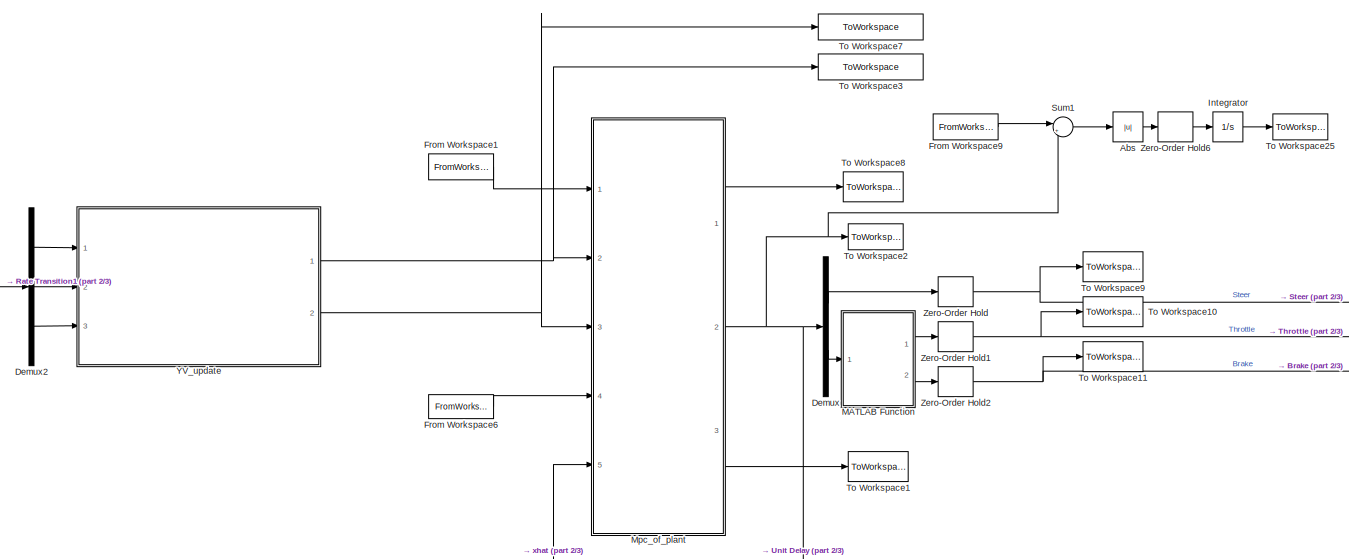
[diagram: root canvas - part 1/3, top left region]
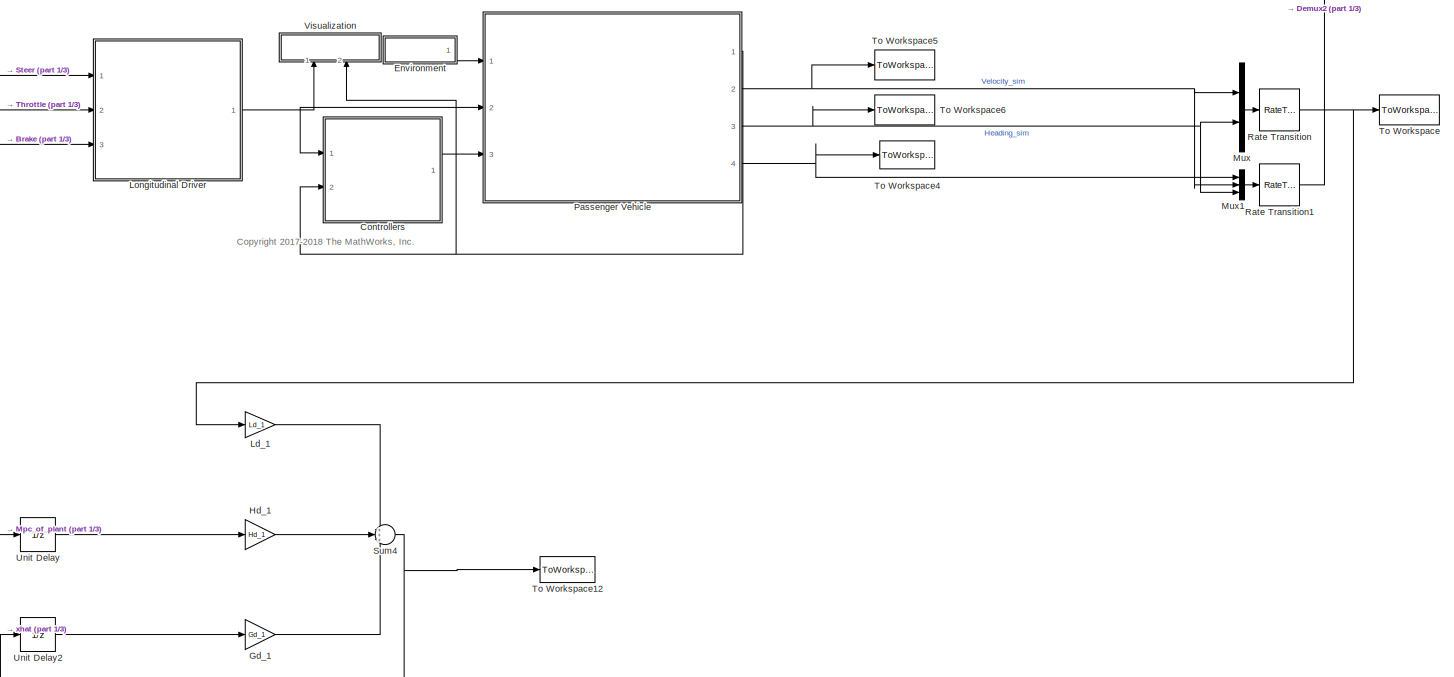
[diagram: root canvas - part 2/3, middle right region]
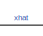
[diagram: root canvas - part 3/3, bottom center region]
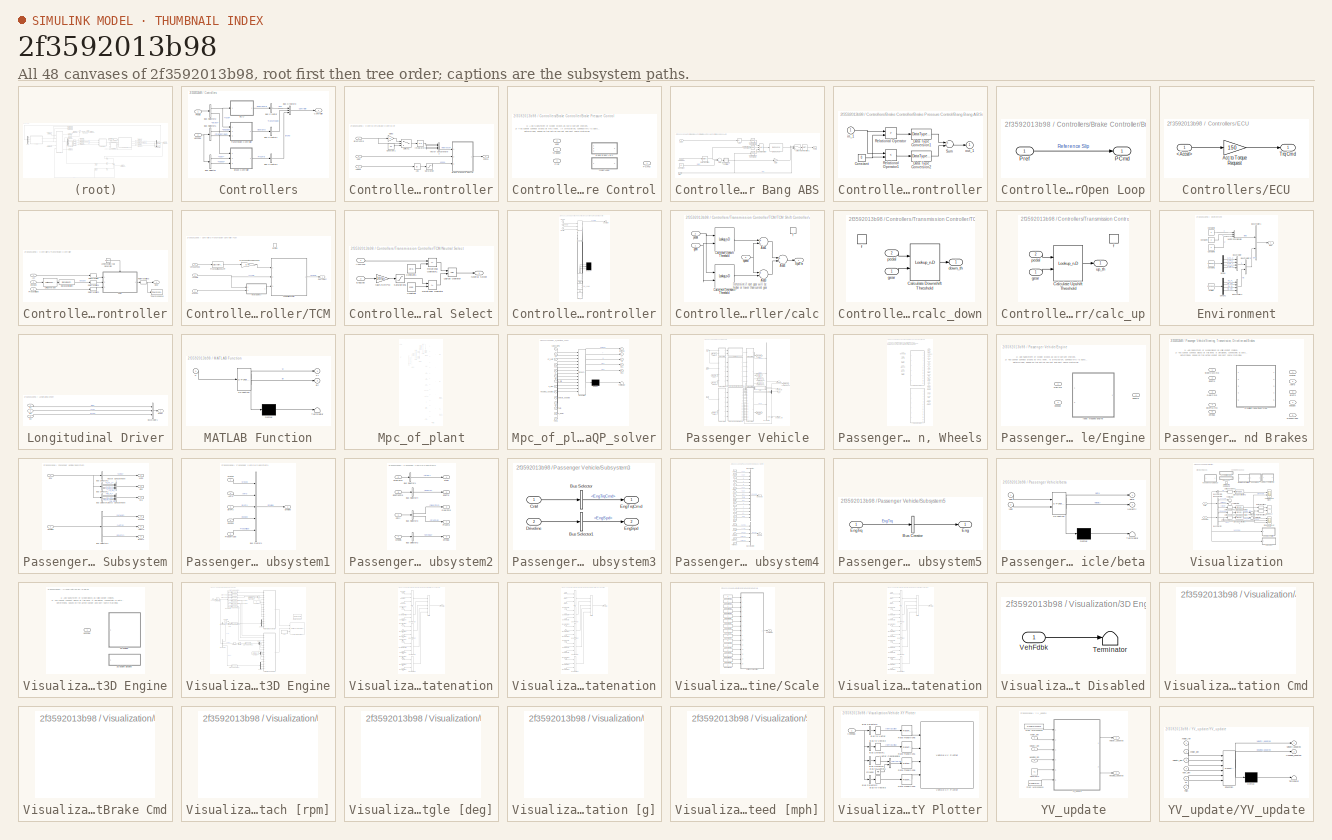
[diagram: thumbnail index - all 48 canvases of the model, root first then tree order]
MODEL slx_2f3592013b98
KIND model
CONFIG AbsTol = auto
CONFIG EnableMultiTasking = off
CONFIG FixedStep = 0.001
CONFIG MaxStep = auto
CONFIG MinStep = auto
CONFIG RelTol = 5e-3
CONFIG SampleTimeConstraint = Unconstrained
CONFIG Solver = FixedStepAuto
CONFIG SolverName = FixedStepAuto
CONFIG StartTime = 0.0
CONFIG StopTime = Tend-Ts
WORKSPACE source: MAT-file member
WORKSPACE A_mu = 10
BLOCK [Abs] Abs
  SaturateOnIntegerOverflow = off
BLOCK [SubSystem] Controllers
  Ports = [2, 1]
  RequestExecContextInheritance = off
BLOCK [SubSystem] Controllers/Brake Controller
  Ports = [3, 1]
  RequestExecContextInheritance = off
BLOCK [Abs] Controllers/Brake Controller/Abs
  SaturateOnIntegerOverflow = off
  ZeroCross = off
BLOCK [SubSystem] Controllers/Brake Controller/Brake Pressure Control
  OverrideUsingVariant = 0
  Ports = [3, 1]
  RequestExecContextInheritance = off
  Variant = on
BLOCK [Inport] Controllers/Brake Controller/Brake Pressure Control/<Kappa>
  IconDisplay = Port number
  Port = 3
BLOCK [SubSystem] Controllers/Brake Controller/Brake Pressure Control/Bang Bang ABS
  Ports = [3, 1]
  RequestExecContextInheritance = off
  VariantControl = 1
BLOCK [Inport] Controllers/Brake Controller/Brake Pressure Control/Bang Bang ABS/<Kappa>
  IconDisplay = Port number
  Port = 3
BLOCK [Abs] Controllers/Brake Controller/Brake Pressure Control/Bang Bang ABS/Abs
  SaturateOnIntegerOverflow = off
BLOCK [Sum] Controllers/Brake Controller/Brake Pressure Control/Bang Bang ABS/Add
  InputSameDT = off
  Inputs = -+
  OutDataTypeStr = Inherit: Inherit via internal rule
  Ports = [2, 1]
  SaturateOnIntegerOverflow = off
BLOCK [SubSystem] Controllers/Brake Controller/Brake Pressure Control/Bang Bang ABS/Bang-bang controller
  Ports = [1, 1]
  RequestExecContextInheritance = off
  ShowPortLabels = none
BLOCK [Constant] Controllers/Brake Controller/Brake Pressure Control/Bang Bang ABS/Bang-bang controller/Constant
  Value = 0
BLOCK [DataTypeConversion] Controllers/Brake Controller/Brake Pressure Control/Bang Bang ABS/Bang-bang controller/Data Type Conversion1
  OutDataTypeStr = double
BLOCK [DataTypeConversion] Controllers/Brake Controller/Brake Pressure Control/Bang Bang ABS/Bang-bang controller/Data Type Conversion2
  OutDataTypeStr = double
BLOCK [RelationalOperator] Controllers/Brake Controller/Brake Pressure Control/Bang Bang ABS/Bang-bang controller/Relational Operator
  Operator = >
  OutDataTypeStr = boolean
  Ports = [2, 1]
BLOCK [RelationalOperator] Controllers/Brake Controller/Brake Pressure Control/Bang Bang ABS/Bang-bang controller/Relational Operator1
  Operator = <
  OutDataTypeStr = boolean
  Ports = [2, 1]
BLOCK [Sum] Controllers/Brake Controller/Brake Pressure Control/Bang Bang ABS/Bang-bang controller/Sum
  Inputs = +-
  Ports = [2, 1]
BLOCK [Inport] Controllers/Brake Controller/Brake Pressure Control/Bang Bang ABS/Bang-bang controller/in_1
  IconDisplay = Port number
BLOCK [Outport] Controllers/Brake Controller/Brake Pressure Control/Bang Bang ABS/Bang-bang controller/out_1
  IconDisplay = Port number
  InitialOutput = 0
BLOCK [Reference] Controllers/Brake Controller/Brake Pressure Control/Bang Bang ABS/Compare To Constant  REF=simulink/Logic and Bit
Operations/Compare
To Constant
  Ports = [1, 1]
  SourceBlock = simulink/Logic and Bit\nOperations/Compare\nTo Constant
  SourceProductBaseCode = SL
  SourceProductName = Simulink
  SourceType = Compare To Constant
BLOCK [Reference] Controllers/Brake Controller/Brake Pressure Control/Bang Bang ABS/Compare To Constant1  REF=simulink/Logic and Bit
Operations/Compare
To Constant
  Ports = [1, 1]
  SourceBlock = simulink/Logic and Bit\nOperations/Compare\nTo Constant
  SourceProductBaseCode = SL
  SourceProductName = Simulink
  SourceType = Compare To Constant
BLOCK [Reference] Controllers/Brake Controller/Brake Pressure Control/Bang Bang ABS/Compare To Constant2  REF=simulink/Logic and Bit
Operations/Compare
To Constant
  Ports = [1, 1]
  SourceBlock = simulink/Logic and Bit\nOperations/Compare\nTo Constant
  SourceProductBaseCode = SL
  SourceProductName = Simulink
  SourceType = Compare To Constant
BLOCK [Constant] Controllers/Brake Controller/Brake Pressure Control/Bang Bang ABS/Constant
  Value = .25
BLOCK [Reference] Controllers/Brake Controller/Brake Pressure Control/Bang Bang ABS/Debounce  REF=autolibutils/Debounce
  Ports = [1, 1]
  SourceBlock = autolibutils/Debounce
  SourceProductBaseCode = PW
  SourceProductName = Powertrain Blockset
BLOCK [Gain] Controllers/Brake Controller/Brake Pressure Control/Bang Bang ABS/Gain
  Gain = 200
  OutDataTypeStr = Inherit: Inherit via internal rule
  ParamDataTypeStr = Inherit: Inherit via internal rule
  SaturateOnIntegerOverflow = off
BLOCK [Logic] Controllers/Brake Controller/Brake Pressure Control/Bang Bang ABS/Logical Operator
  AllPortsSameDT = off
  Inputs = 3
  OutDataTypeStr = boolean
  Ports = [3, 1]
BLOCK [Outport] Controllers/Brake Controller/Brake Pressure Control/Bang Bang ABS/PCmd
  IconDisplay = Port number
BLOCK [Inport] Controllers/Brake Controller/Brake Pressure Control/Bang Bang ABS/Pref
  IconDisplay = Port number
BLOCK [RateTransition] Controllers/Brake Controller/Brake Pressure Control/Bang Bang ABS/Rate Transition
  OutPortSampleTime = .001
BLOCK [RateTransition] Controllers/Brake Controller/Brake Pressure Control/Bang Bang ABS/Rate Transition1
BLOCK [Switch] Controllers/Brake Controller/Brake Pressure Control/Bang Bang ABS/Switch
  Criteria = u2 > Threshold
  InputSameDT = off
  SaturateOnIntegerOverflow = off
  ZeroCross = off
BLOCK [Inport] Controllers/Brake Controller/Brake Pressure Control/Bang Bang ABS/xdot
  IconDisplay = Port number
  Port = 2
BLOCK [SubSystem] Controllers/Brake Controller/Brake Pressure Control/Open Loop
  Ports = [1, 1]
  RequestExecContextInheritance = off
  VariantControl = 0
BLOCK [Outport] Controllers/Brake Controller/Brake Pressure Control/Open Loop/PCmd
  IconDisplay = Port number
BLOCK [Inport] Controllers/Brake Controller/Brake Pressure Control/Open Loop/Pref
  IconDisplay = Port number
BLOCK [Outport] Controllers/Brake Controller/Brake Pressure Control/PCmd
  IconDisplay = Port number
BLOCK [Inport] Controllers/Brake Controller/Brake Pressure Control/Pref
  IconDisplay = Port number
BLOCK [Inport] Controllers/Brake Controller/Brake Pressure Control/xdot
  IconDisplay = Port number
  Port = 2
BLOCK [Inport] Controllers/Brake Controller/BrkPrsCmd
  IconDisplay = Port number
BLOCK [Constant] Controllers/Brake Controller/Constant1
  Value = -20
BLOCK [Gain] Controllers/Brake Controller/Gain3
  OutDataTypeStr = Inherit: Inherit via internal rule
  ParamDataTypeStr = Inherit: Inherit via internal rule
  SaturateOnIntegerOverflow = off
BLOCK [Integrator] Controllers/Brake Controller/Integrator2
  LimitOutput = on
  LowerSaturationLimit = 0
  Ports = [1, 1]
  UpperSaturationLimit = 1
BLOCK [Outport] Controllers/Brake Controller/PCmd
  IconDisplay = Port number
BLOCK [Saturate] Controllers/Brake Controller/Saturation
  InputPortMap = u0
  LowerLimit = 0
  Ports = [1, 1]
  UpperLimit = 1
  ZeroCross = off
BLOCK [Switch] Controllers/Brake Controller/Switch1
  Criteria = u2 > Threshold
  InputSameDT = off
  SaturateOnIntegerOverflow = off
  Threshold = .1
BLOCK [Concatenate] Controllers/Brake Controller/Vector Concatenate2
  NumInputs = 4
  Ports = [4, 1]
BLOCK [Inport] Controllers/Brake Controller/kappa
  IconDisplay = Port number
  Port = 3
BLOCK [Inport] Controllers/Brake Controller/xdot
  IconDisplay = Port number
  Port = 2
BLOCK [BusCreator] Controllers/Bus Creator
  DisplayOption = bar
  InheritFromInputs = on
  Inputs = 1
  Ports = [1, 1]
BLOCK [BusCreator] Controllers/Bus Creator1
  DisplayOption = bar
  InheritFromInputs = on
  Inputs = 1
  Ports = [1, 1]
BLOCK [BusCreator] Controllers/Bus Creator2
  DisplayOption = bar
  InheritFromInputs = on
  Inputs = 1
  Ports = [1, 1]
BLOCK [BusCreator] Controllers/Bus Creator3
  DisplayOption = bar
  InheritFromInputs = on
  Inputs = 3
  Ports = [3, 1]
BLOCK [BusSelector] Controllers/Bus Selector
  OutputAsBus = off
  OutputSignals = Body.xdot,Wheels.kappa
  Ports = [1, 2]
BLOCK [BusSelector] Controllers/Bus Selector1
  OutputAsBus = off
  OutputSignals = Driveline.EngSpd,Driveline.PropShftSpd
  Ports = [1, 2]
BLOCK [BusSelector] Controllers/Bus Selector2
  OutputAsBus = off
  OutputSignals = Accel,Brake
  Ports = [1, 2]
BLOCK [Outport] Controllers/Controller
  IconDisplay = Port number
BLOCK [SubSystem] Controllers/ECU
  Ports = [1, 1]
  RequestExecContextInheritance = off
BLOCK [Inport] Controllers/ECU/<Accel>
  IconDisplay = Port number
BLOCK [Gain] Controllers/ECU/Acc to Torque Request
  Gain = 150
  OutDataTypeStr = Inherit: Inherit via internal rule
  ParamDataTypeStr = Inherit: Inherit via internal rule
  SaturateOnIntegerOverflow = off
BLOCK [Outport] Controllers/ECU/Trq Cmd
  IconDisplay = Port number
BLOCK [Inport] Controllers/Pedals
  IconDisplay = Port number
BLOCK [SubSystem] Controllers/Transmission Controller
  Ports = [3, 1]
  RequestExecContextInheritance = off
BLOCK [Reference] Controllers/Transmission Controller/10ms Function-Call Generator  REF=simulink/Ports &
Subsystems/Function-Call
Generator
  Ports = [0, 1]
  SourceBlock = simulink/Ports &\nSubsystems/Function-Call\nGenerator
  SourceProductBaseCode = SL
  SourceProductName = Simulink
  SourceType = Function-Call Generator
BLOCK [Inport] Controllers/Transmission Controller/Acc
  IconDisplay = Port number
BLOCK [Inport] Controllers/Transmission Controller/EngSpd
  IconDisplay = Port number
  Port = 2
  Unit = rad/s
BLOCK [Outport] Controllers/Transmission Controller/Gear
  IconDisplay = Port number
BLOCK [Inport] Controllers/Transmission Controller/PropShaftSpd
  IconDisplay = Port number
  Port = 3
BLOCK [RateTransition] Controllers/Transmission Controller/Rate Transition
BLOCK [RateTransition] Controllers/Transmission Controller/Rate Transition1
BLOCK [RateTransition] Controllers/Transmission Controller/Rate Transition2
BLOCK [RateTransition] Controllers/Transmission Controller/Rate Transition3
BLOCK [SignalSpecification] Controllers/Transmission Controller/Signal Specification
  Unit = rpm
BLOCK [SubSystem] Controllers/Transmission Controller/TCM
  Ports = [3, 1, 0, 1]
  RequestExecContextInheritance = off
BLOCK [Inport] Controllers/Transmission Controller/TCM/AccCmd
  IconDisplay = Port number
BLOCK [Inport] Controllers/Transmission Controller/TCM/EngSpd
  IconDisplay = Port number
  Port = 2
BLOCK [Outport] Controllers/Transmission Controller/TCM/Gear Select
  IconDisplay = Port number
BLOCK [SubSystem] Controllers/Transmission Controller/TCM/Neutral Select
  Ports = [2, 1]
  RequestExecContextInheritance = off
BLOCK [Inport] Controllers/Transmission Controller/TCM/Neutral Select/AccCmd
  IconDisplay = Port number
BLOCK [Constant] Controllers/Transmission Controller/TCM/Neutral Select/Constant
  Value = 1200
BLOCK [Constant] Controllers/Transmission Controller/TCM/Neutral Select/Constant1
  Value = 1e-6
BLOCK [Inport] Controllers/Transmission Controller/TCM/Neutral Select/EngSpd
  IconDisplay = Port number
  Port = 2
BLOCK [Logic] Controllers/Transmission Controller/TCM/Neutral Select/Logical Operator
  AllPortsSameDT = off
  OutDataTypeStr = boolean
  Ports = [2, 1]
BLOCK [Outport] Controllers/Transmission Controller/TCM/Neutral Select/Neutral Select
  IconDisplay = Port number
BLOCK [RelationalOperator] Controllers/Transmission Controller/TCM/Neutral Select/Relational Operator
  InputSameDT = off
  Operator = <=
  OutDataTypeStr = boolean
  Ports = [2, 1]
  RndMeth = Simplest
BLOCK [RelationalOperator] Controllers/Transmission Controller/TCM/Neutral Select/Relational Operator1
  InputSameDT = off
  Operator = <=
  OutDataTypeStr = boolean
  Ports = [2, 1]
  RndMeth = Simplest
BLOCK [Saturate] Controllers/Transmission Controller/TCM/Neutral Select/Saturation1
  InputPortMap = u0
  LowerLimit = 0
  Ports = [1, 1]
  UpperLimit = 10e3
BLOCK [Gain] Controllers/Transmission Controller/TCM/Neutral Select/rad//s to RPM
  Gain = 30/pi
  OutDataTypeStr = Inherit: Inherit via internal rule
  ParamDataTypeStr = Inherit: Inherit via internal rule
  SaturateOnIntegerOverflow = off
BLOCK [DiscreteTransferFcn] Controllers/Transmission Controller/TCM/Prop Shaft Speed LPF
  Denominator = [1.000000000000000 -0.990049833749168 ]
  InputPortMap = u0
  Numerator = [0.000000000000000 0.009950166250832 ]
  Ports = [1, 1]
BLOCK [SubSystem] Controllers/Transmission Controller/TCM/TCM Shift Controller
  ErrorFcn = Stateflow.Translate.translate
  PermitHierarchicalResolution = ExplicitOnly
  Ports = [3, 1]
  RequestExecContextInheritance = off
  SFBlockType = Chart
  TreatAsAtomicUnit = on
BLOCK [Demux] Controllers/Transmission Controller/TCM/TCM Shift Controller/ Demux 
  Outputs = 3
  Ports = [1, 3]
BLOCK [S-Function] Controllers/Transmission Controller/TCM/TCM Shift Controller/ SFunction 
  EnableBusSupport = on
  FunctionName = sf_sfun
  PortCounts = [6 9]
  Ports = [6, 9]
  SFcnIsStateOwnerBlock = off
  SFunctionDeploymentMode = off
  Tag = Stateflow S-Function MPC_control_for_PP 1
BLOCK [Outport] Controllers/Transmission Controller/TCM/TCM Shift Controller/GearState
  IconDisplay = Port number
BLOCK [Inport] Controllers/Transmission Controller/TCM/TCM Shift Controller/Neutral
  IconDisplay = Port number
  Port = 3
BLOCK [SubSystem] Controllers/Transmission Controller/TCM/TCM Shift Controller/calc
  Ports = [3, 1, 0, 1]
  PreDeleteFcn = Stateflow.SLINSF.SimulinkMan.removePreDeleteFcn
  RequestExecContextInheritance = off
  UndoDeleteFcn = Stateflow.SLINSF.SimulinkMan.restorePreDeleteFcn
BLOCK [Sum] Controllers/Transmission Controller/TCM/TCM Shift Controller/calc/Add1
  InputSameDT = off
  Inputs = +-
  OutDataTypeStr = Inherit: Inherit via internal rule
  Ports = [2, 1]
  SaturateOnIntegerOverflow = off
BLOCK [Sum] Controllers/Transmission Controller/TCM/TCM Shift Controller/calc/Add3
  InputSameDT = off
  Inputs = +-
  OutDataTypeStr = Inherit: Inherit via internal rule
  Ports = [2, 1]
  SaturateOnIntegerOverflow = off
BLOCK [Sum] Controllers/Transmission Controller/TCM/TCM Shift Controller/calc/Add4
  InputSameDT = off
  Inputs = +-
  OutDataTypeStr = Inherit: Inherit via internal rule
  Ports = [2, 1]
  SaturateOnIntegerOverflow = off
BLOCK [Lookup_n-D] Controllers/Transmission Controller/TCM/TCM Shift Controller/calc/Calculate Downshift Threshold
  BreakpointsForDimension1 = Pedal_Positions
  BreakpointsForDimension2 = 2:8
  ExtrapMethod = Clip
  InternalRulePriority = Speed
  Ports = [2, 1]
  RndMeth = Simplest
  Table = Downshift_Speeds
  UseLastTableValue = on
BLOCK [Lookup_n-D] Controllers/Transmission Controller/TCM/TCM Shift Controller/calc/Calculate Upshift Threshold
  BreakpointsForDimension1 = Pedal_Positions
  BreakpointsForDimension2 = 1:7
  ExtrapMethod = Clip
  InternalRulePriority = Speed
  Ports = [2, 1]
  RndMeth = Simplest
  Table = Upshift_Speeds
  UseLastTableValue = on
BLOCK [Outport] Controllers/Transmission Controller/TCM/TCM Shift Controller/calc/SpdThr
  IconDisplay = Port number
BLOCK [TriggerPort] Controllers/Transmission Controller/TCM/TCM Shift Controller/calc/f
  CopyFcn = Stateflow.SLINSF.SimulinkMan.removeBlockPreDeleteFcn
  Ports = []
  PreDeleteFcn = Stateflow.SLINSF.SimulinkMan.unsafePredeleteFcn
  StatesWhenEnabling = reset
  TriggerType = function-call
  VariantControl = Variant
BLOCK [Inport] Controllers/Transmission Controller/TCM/TCM Shift Controller/calc/gear
  IconDisplay = Port number
BLOCK [Inport] Controllers/Transmission Controller/TCM/TCM Shift Controller/calc/pedal
  IconDisplay = Port number
  Port = 2
BLOCK [Inport] Controllers/Transmission Controller/TCM/TCM Shift Controller/calc/speed
  IconDisplay = Port number
  Port = 3
BLOCK [SubSystem] Controllers/Transmission Controller/TCM/TCM Shift Controller/calc_down
  Ports = [2, 1, 0, 1]
  PreDeleteFcn = Stateflow.SLINSF.SimulinkMan.removePreDeleteFcn
  RequestExecContextInheritance = off
  UndoDeleteFcn = Stateflow.SLINSF.SimulinkMan.restorePreDeleteFcn
BLOCK [Lookup_n-D] Controllers/Transmission Controller/TCM/TCM Shift Controller/calc_down/Calculate Downshift Threshold
  BreakpointsForDimension1 = Pedal_Positions
  BreakpointsForDimension2 = 2:8
  ExtrapMethod = Clip
  InternalRulePriority = Speed
  Ports = [2, 1]
  RndMeth = Simplest
  Table = Downshift_Speeds
  UseLastTableValue = on
BLOCK [Outport] Controllers/Transmission Controller/TCM/TCM Shift Controller/calc_down/down_th
  IconDisplay = Port number
BLOCK [TriggerPort] Controllers/Transmission Controller/TCM/TCM Shift Controller/calc_down/f
  CopyFcn = Stateflow.SLINSF.SimulinkMan.removeBlockPreDeleteFcn
  Ports = []
  PreDeleteFcn = Stateflow.SLINSF.SimulinkMan.unsafePredeleteFcn
  StatesWhenEnabling = reset
  TriggerType = function-call
  VariantControl = Variant
BLOCK [Inport] Controllers/Transmission Controller/TCM/TCM Shift Controller/calc_down/gear
  IconDisplay = Port number
BLOCK [Inport] Controllers/Transmission Controller/TCM/TCM Shift Controller/calc_down/pedal
  IconDisplay = Port number
  Port = 2
BLOCK [SubSystem] Controllers/Transmission Controller/TCM/TCM Shift Controller/calc_up
  Ports = [2, 1, 0, 1]
  PreDeleteFcn = Stateflow.SLINSF.SimulinkMan.removePreDeleteFcn
  RequestExecContextInheritance = off
  UndoDeleteFcn = Stateflow.SLINSF.SimulinkMan.restorePreDeleteFcn
BLOCK [Lookup_n-D] Controllers/Transmission Controller/TCM/TCM Shift Controller/calc_up/Calculate Upshift Threshold
  BreakpointsForDimension1 = Pedal_Positions
  BreakpointsForDimension2 = 1:7
  ExtrapMethod = Clip
  InternalRulePriority = Speed
  Ports = [2, 1]
  RndMeth = Simplest
  Table = Upshift_Speeds
  UseLastTableValue = on
BLOCK [TriggerPort] Controllers/Transmission Controller/TCM/TCM Shift Controller/calc_up/f
  CopyFcn = Stateflow.SLINSF.SimulinkMan.removeBlockPreDeleteFcn
  Ports = []
  PreDeleteFcn = Stateflow.SLINSF.SimulinkMan.unsafePredeleteFcn
  StatesWhenEnabling = reset
  TriggerType = function-call
  VariantControl = Variant
BLOCK [Inport] Controllers/Transmission Controller/TCM/TCM Shift Controller/calc_up/gear
  IconDisplay = Port number
BLOCK [Inport] Controllers/Transmission Controller/TCM/TCM Shift Controller/calc_up/pedal
  IconDisplay = Port number
  Port = 2
BLOCK [Outport] Controllers/Transmission Controller/TCM/TCM Shift Controller/calc_up/up_th
  IconDisplay = Port number
BLOCK [Inport] Controllers/Transmission Controller/TCM/TCM Shift Controller/pedal
  IconDisplay = Port number
  Port = 2
BLOCK [Inport] Controllers/Transmission Controller/TCM/TCM Shift Controller/speed
  IconDisplay = Port number
BLOCK [Inport] Controllers/Transmission Controller/TCM/VehSpdFdbk
  IconDisplay = Port number
  Port = 3
BLOCK [TriggerPort] Controllers/Transmission Controller/TCM/function
  Ports = []
  StatesWhenEnabling = held
  TriggerType = function-call
  VariantControl = Variant
BLOCK [Gain] Controllers/Transmission Controller/TCM/prop speed to vehicle speed
  Gain = 0.45
  OutDataTypeStr = Inherit: Inherit via internal rule
  ParamDataTypeStr = Inherit: Inherit via internal rule
  SaturateOnIntegerOverflow = off
BLOCK [ToWorkspace] Controllers/Transmission Controller/To Workspace4
  FixptAsFi = on
  MaxDataPoints = inf
  Ports = [1]
  SampleTime = Ts
  Save2DSignal = 3-D array (concatenate along third dimension)
  VariableName = Gear
BLOCK [UnitConversion] Controllers/Transmission Controller/Unit Conversion
BLOCK [Inport] Controllers/VehFdbk
  IconDisplay = Port number
  Port = 2
BLOCK [Demux] Demux
  DisplayOption = bar
  Outputs = 2
  Ports = [1, 2]
BLOCK [Demux] Demux2
  DisplayOption = bar
  Outputs = 3
  Ports = [1, 3]
BLOCK [SubSystem] Environment
  Ports = [0, 1]
  RequestExecContextInheritance = off
  TreatAsAtomicUnit = on
BLOCK [BusCreator] Environment/Bus Creator
  DisplayOption = bar
  InheritFromInputs = on
  Inputs = 4
  Ports = [4, 1]
BLOCK [BusCreator] Environment/Bus Creator1
  DisplayOption = bar
  InheritFromInputs = on
  Inputs = 2
  Ports = [2, 1]
BLOCK [BusCreator] Environment/Bus Creator2
  DisplayOption = bar
  InheritFromInputs = on
  Inputs = 4
  Ports = [4, 1]
BLOCK [BusCreator] Environment/Bus Creator3
  DisplayOption = bar
  InheritFromInputs = on
  Inputs = 2
  Ports = [2, 1]
BLOCK [Constant] Environment/Constant1
  Value = zeros(4,1)
BLOCK [Constant] Environment/Constant3
  Value = 0
BLOCK [Constant] Environment/Constant4
  Value = 0
BLOCK [Constant] Environment/Constant5
  Value = 0
BLOCK [Demux] Environment/Demux
  DisplayOption = bar
  Ports = [1, 4]
BLOCK [Demux] Environment/Demux1
  DisplayOption = bar
  Ports = [1, 4]
BLOCK [Outport] Environment/Env
  IconDisplay = Port number
BLOCK [Constant] Environment/Friction
  Value = ones(4,1).*1
BLOCK [Concatenate] Environment/Vector Concatenate
  NumInputs = 3
  Ports = [3, 1]
BLOCK [FromWorkspace] From Workspace1
  SampleTime = Ts
  VariableName = Rs
  ZeroCross = on
BLOCK [FromWorkspace] From Workspace6
  SampleTime = Ts
  VariableName = select_MPC
  ZeroCross = on
BLOCK [FromWorkspace] From Workspace9
  SampleTime = Ts
  VariableName = Ideal_U
  ZeroCross = on
BLOCK [Gain] Gd_1
  Gain = Gd_1
  Multiplication = Matrix(K*u) (u vector)
  OutDataTypeStr = Inherit: Inherit via internal rule
  ParamDataTypeStr = Inherit: Inherit via internal rule
  SaturateOnIntegerOverflow = off
BLOCK [Gain] Hd_1
  Gain = Hd_1
  Multiplication = Matrix(K*u) (u vector)
  OutDataTypeStr = Inherit: Inherit via internal rule
  ParamDataTypeStr = Inherit: Inherit via internal rule
  SaturateOnIntegerOverflow = off
BLOCK [Integrator] Integrator
  Ports = [1, 1]
BLOCK [Gain] Ld_1
  Gain = Ld_1
  Multiplication = Matrix(K*u) (u vector)
  OutDataTypeStr = Inherit: Inherit via internal rule
  ParamDataTypeStr = Inherit: Inherit via internal rule
  SaturateOnIntegerOverflow = off
BLOCK [SubSystem] Longitudinal Driver
  Ports = [3, 1]
  RequestExecContextInheritance = off
  SystemSampleTime = Tf
  VariantControl = 0
BLOCK [BusCreator] Longitudinal Driver/Bus Creator1
  DisplayOption = bar
  InheritFromInputs = on
  Inputs = 3
  Ports = [3, 1]
BLOCK [Outport] Longitudinal Driver/Driver
  IconDisplay = Port number
BLOCK [Inport] Longitudinal Driver/In1
  IconDisplay = Port number
  SampleTime = Tf
BLOCK [Inport] Longitudinal Driver/In2
  IconDisplay = Port number
  Port = 2
  SampleTime = Tf
BLOCK [Inport] Longitudinal Driver/In3
  IconDisplay = Port number
  Port = 3
  SampleTime = Tf
BLOCK [SubSystem] MATLAB Function
  ErrorFcn = Stateflow.Translate.translate
  PermitHierarchicalResolution = ExplicitOnly
  Ports = [1, 2]
  RequestExecContextInheritance = off
  SFBlockType = MATLAB Function
  SystemSampleTime = Ts
  TreatAsAtomicUnit = on
BLOCK [Demux] MATLAB Function/ Demux 
  Outputs = 1
  Ports = [1, 1]
BLOCK [S-Function] MATLAB Function/ SFunction 
  EnableBusSupport = on
  FunctionName = sf_sfun
  PortCounts = [1 3]
  Ports = [1, 3]
  SFcnIsStateOwnerBlock = off
  SFunctionDeploymentMode = off
  Tag = Stateflow S-Function MPC_control_for_PP 3
BLOCK [Terminator] MATLAB Function/ Terminator 
BLOCK [Outport] MATLAB Function/Br
  IconDisplay = Port number
  Port = 2
BLOCK [Outport] MATLAB Function/Tr
  IconDisplay = Port number
BLOCK [Inport] MATLAB Function/u
  IconDisplay = Port number
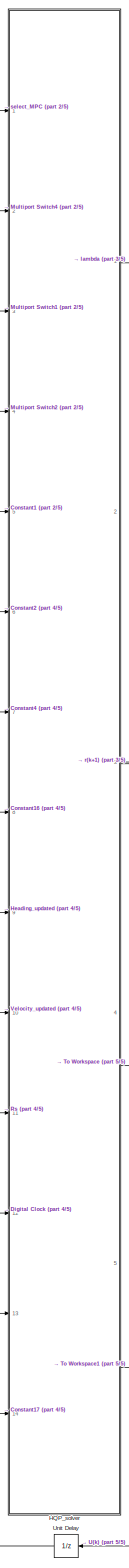
[diagram: Mpc_of_plant - part 1/5, right side, full height]
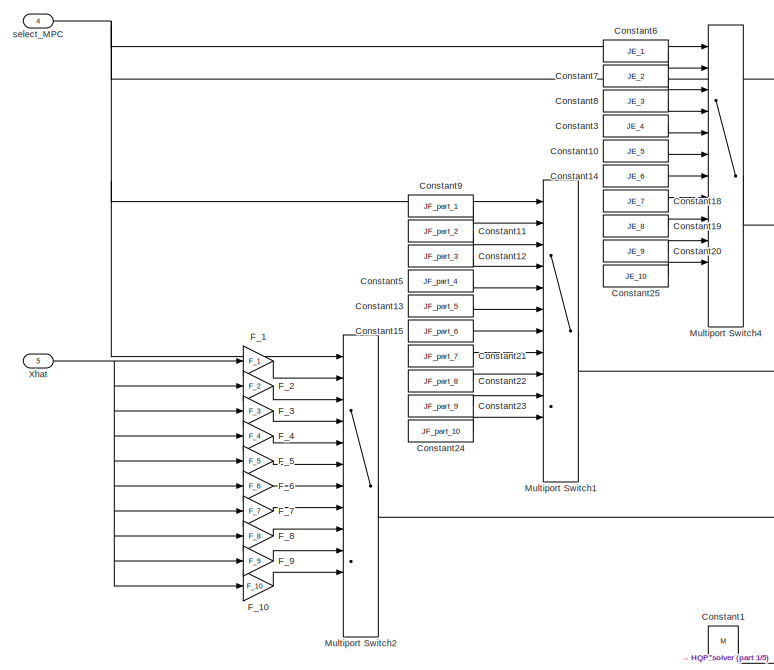
[diagram: Mpc_of_plant - part 2/5, top center region]
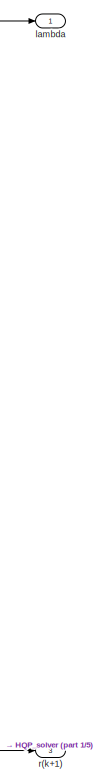
[diagram: Mpc_of_plant - part 3/5, middle right region]
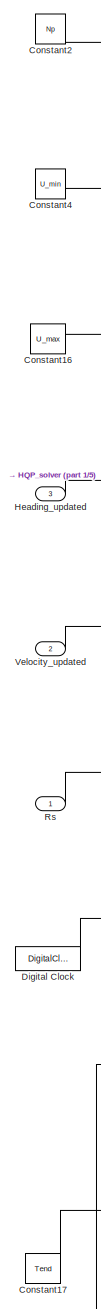
[diagram: Mpc_of_plant - part 4/5, central region]
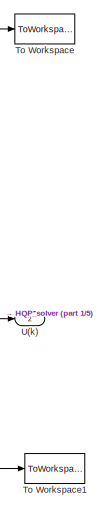
[diagram: Mpc_of_plant - part 5/5, bottom right region]
BLOCK [SubSystem] Mpc_of_plant
  Ports = [5, 3]
  RequestExecContextInheritance = off
  SystemSampleTime = Ts
  TreatAsAtomicUnit = on
BLOCK [Constant] Mpc_of_plant/Constant1
  SampleTime = -1
  Value = M
  VectorParams1D = off
BLOCK [Constant] Mpc_of_plant/Constant10
  SampleTime = -1
  Value = JE_5
  VectorParams1D = off
BLOCK [Constant] Mpc_of_plant/Constant11
  SampleTime = -1
  Value = JF_part_2
  VectorParams1D = off
BLOCK [Constant] Mpc_of_plant/Constant12
  SampleTime = -1
  Value = JF_part_3
  VectorParams1D = off
BLOCK [Constant] Mpc_of_plant/Constant13
  SampleTime = -1
  Value = JF_part_5
  VectorParams1D = off
BLOCK [Constant] Mpc_of_plant/Constant14
  SampleTime = -1
  Value = JE_6
  VectorParams1D = off
BLOCK [Constant] Mpc_of_plant/Constant15
  SampleTime = -1
  Value = JF_part_6
  VectorParams1D = off
BLOCK [Constant] Mpc_of_plant/Constant16
  SampleTime = -1
  Value = U_max
  VectorParams1D = off
BLOCK [Constant] Mpc_of_plant/Constant17
  SampleTime = -1
  Value = Tend
  VectorParams1D = off
BLOCK [Constant] Mpc_of_plant/Constant18
  SampleTime = -1
  Value = JE_7
  VectorParams1D = off
BLOCK [Constant] Mpc_of_plant/Constant19
  SampleTime = -1
  Value = JE_8
  VectorParams1D = off
BLOCK [Constant] Mpc_of_plant/Constant2
  SampleTime = -1
  Value = Np
BLOCK [Constant] Mpc_of_plant/Constant20
  SampleTime = -1
  Value = JE_9
  VectorParams1D = off
BLOCK [Constant] Mpc_of_plant/Constant21
  SampleTime = -1
  Value = JF_part_7
  VectorParams1D = off
BLOCK [Constant] Mpc_of_plant/Constant22
  SampleTime = -1
  Value = JF_part_8
  VectorParams1D = off
BLOCK [Constant] Mpc_of_plant/Constant23
  SampleTime = -1
  Value = JF_part_9
  VectorParams1D = off
BLOCK [Constant] Mpc_of_plant/Constant24
  SampleTime = -1
  Value = JF_part_10
  VectorParams1D = off
BLOCK [Constant] Mpc_of_plant/Constant25
  SampleTime = -1
  Value = JE_10
  VectorParams1D = off
BLOCK [Constant] Mpc_of_plant/Constant3
  SampleTime = -1
  Value = JE_4
  VectorParams1D = off
BLOCK [Constant] Mpc_of_plant/Constant4
  SampleTime = -1
  Value = U_min
  VectorParams1D = off
BLOCK [Constant] Mpc_of_plant/Constant5
  SampleTime = -1
  Value = JF_part_4
  VectorParams1D = off
BLOCK [Constant] Mpc_of_plant/Constant6
  SampleTime = -1
  Value = JE_1
  VectorParams1D = off
BLOCK [Constant] Mpc_of_plant/Constant7
  SampleTime = -1
  Value = JE_2
  VectorParams1D = off
BLOCK [Constant] Mpc_of_plant/Constant8
  SampleTime = -1
  Value = JE_3
  VectorParams1D = off
BLOCK [Constant] Mpc_of_plant/Constant9
  SampleTime = -1
  Value = JF_part_1
  VectorParams1D = off
BLOCK [DigitalClock] Mpc_of_plant/Digital Clock
  SampleTime = Ts
BLOCK [Gain] Mpc_of_plant/F_1
  Gain = F_1
  Multiplication = Matrix(K*u) (u vector)
  OutDataTypeStr = Inherit: Inherit via internal rule
  ParamDataTypeStr = Inherit: Inherit via internal rule
  SaturateOnIntegerOverflow = off
BLOCK [Gain] Mpc_of_plant/F_10
  Gain = F_10
  Multiplication = Matrix(K*u) (u vector)
  OutDataTypeStr = Inherit: Inherit via internal rule
  ParamDataTypeStr = Inherit: Inherit via internal rule
  SaturateOnIntegerOverflow = off
BLOCK [Gain] Mpc_of_plant/F_2
  Gain = F_2
  Multiplication = Matrix(K*u) (u vector)
  OutDataTypeStr = Inherit: Inherit via internal rule
  ParamDataTypeStr = Inherit: Inherit via internal rule
  SaturateOnIntegerOverflow = off
BLOCK [Gain] Mpc_of_plant/F_3
  Gain = F_3
  Multiplication = Matrix(K*u) (u vector)
  OutDataTypeStr = Inherit: Inherit via internal rule
  ParamDataTypeStr = Inherit: Inherit via internal rule
  SaturateOnIntegerOverflow = off
BLOCK [Gain] Mpc_of_plant/F_4
  Gain = F_4
  Multiplication = Matrix(K*u) (u vector)
  OutDataTypeStr = Inherit: Inherit via internal rule
  ParamDataTypeStr = Inherit: Inherit via internal rule
  SaturateOnIntegerOverflow = off
BLOCK [Gain] Mpc_of_plant/F_5
  Gain = F_5
  Multiplication = Matrix(K*u) (u vector)
  OutDataTypeStr = Inherit: Inherit via internal rule
  ParamDataTypeStr = Inherit: Inherit via internal rule
  SaturateOnIntegerOverflow = off
BLOCK [Gain] Mpc_of_plant/F_6
  Gain = F_6
  Multiplication = Matrix(K*u) (u vector)
  OutDataTypeStr = Inherit: Inherit via internal rule
  ParamDataTypeStr = Inherit: Inherit via internal rule
  SaturateOnIntegerOverflow = off
BLOCK [Gain] Mpc_of_plant/F_7
  Gain = F_7
  Multiplication = Matrix(K*u) (u vector)
  OutDataTypeStr = Inherit: Inherit via internal rule
  ParamDataTypeStr = Inherit: Inherit via internal rule
  SaturateOnIntegerOverflow = off
BLOCK [Gain] Mpc_of_plant/F_8
  Gain = F_8
  Multiplication = Matrix(K*u) (u vector)
  OutDataTypeStr = Inherit: Inherit via internal rule
  ParamDataTypeStr = Inherit: Inherit via internal rule
  SaturateOnIntegerOverflow = off
BLOCK [Gain] Mpc_of_plant/F_9
  Gain = F_9
  Multiplication = Matrix(K*u) (u vector)
  OutDataTypeStr = Inherit: Inherit via internal rule
  ParamDataTypeStr = Inherit: Inherit via internal rule
  SaturateOnIntegerOverflow = off
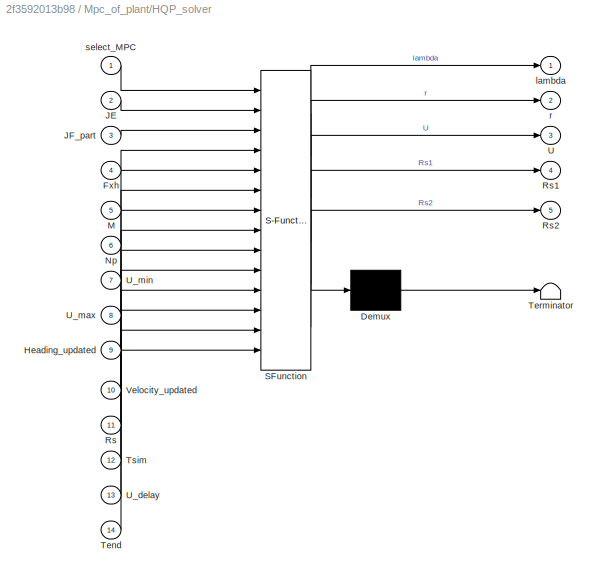
BLOCK [SubSystem] Mpc_of_plant/HQP_solver
  ErrorFcn = Stateflow.Translate.translate
  PermitHierarchicalResolution = ExplicitOnly
  Ports = [14, 5]
  RequestExecContextInheritance = off
  SFBlockType = MATLAB Function
  SystemSampleTime = Ts
  TreatAsAtomicUnit = on
BLOCK [Demux] Mpc_of_plant/HQP_solver/ Demux 
  Outputs = 1
  Ports = [1, 1]
BLOCK [S-Function] Mpc_of_plant/HQP_solver/ SFunction 
  EnableBusSupport = on
  FunctionName = sf_sfun
  PortCounts = [14 6]
  Ports = [14, 6]
  SFcnIsStateOwnerBlock = off
  SFunctionDeploymentMode = off
  Tag = Stateflow S-Function MPC_control_for_PP 2
BLOCK [Terminator] Mpc_of_plant/HQP_solver/ Terminator 
BLOCK [Inport] Mpc_of_plant/HQP_solver/Fxh
  IconDisplay = Port number
  Port = 4
BLOCK [Inport] Mpc_of_plant/HQP_solver/Heading_updated
  IconDisplay = Port number
  Port = 9
BLOCK [Inport] Mpc_of_plant/HQP_solver/JE
  IconDisplay = Port number
  Port = 2
BLOCK [Inport] Mpc_of_plant/HQP_solver/JF_part
  IconDisplay = Port number
  Port = 3
BLOCK [Inport] Mpc_of_plant/HQP_solver/M
  IconDisplay = Port number
  Port = 5
BLOCK [Inport] Mpc_of_plant/HQP_solver/Np
  IconDisplay = Port number
  Port = 6
BLOCK [Inport] Mpc_of_plant/HQP_solver/Rs
  IconDisplay = Port number
  Port = 11
BLOCK [Outport] Mpc_of_plant/HQP_solver/Rs1
  IconDisplay = Port number
  Port = 4
BLOCK [Outport] Mpc_of_plant/HQP_solver/Rs2
  IconDisplay = Port number
  Port = 5
BLOCK [Inport] Mpc_of_plant/HQP_solver/Tend
  IconDisplay = Port number
  Port = 14
BLOCK [Inport] Mpc_of_plant/HQP_solver/Tsim
  IconDisplay = Port number
  Port = 12
BLOCK [Outport] Mpc_of_plant/HQP_solver/U
  IconDisplay = Port number
  Port = 3
BLOCK [Inport] Mpc_of_plant/HQP_solver/U_delay
  IconDisplay = Port number
  Port = 13
BLOCK [Inport] Mpc_of_plant/HQP_solver/U_max
  IconDisplay = Port number
  Port = 8
BLOCK [Inport] Mpc_of_plant/HQP_solver/U_min
  IconDisplay = Port number
  Port = 7
BLOCK [Inport] Mpc_of_plant/HQP_solver/Velocity_updated
  IconDisplay = Port number
  Port = 10
BLOCK [Outport] Mpc_of_plant/HQP_solver/lambda
  IconDisplay = Port number
BLOCK [Outport] Mpc_of_plant/HQP_solver/r
  IconDisplay = Port number
  Port = 2
BLOCK [Inport] Mpc_of_plant/HQP_solver/select_MPC
  IconDisplay = Port number
BLOCK [Inport] Mpc_of_plant/Heading_updated
  IconDisplay = Port number
  LockScale = on
  Port = 3
  SampleTime = Ts
BLOCK [MultiPortSwitch] Mpc_of_plant/Multiport Switch1
  InputSameDT = off
  Inputs = 12
  Ports = [13, 1]
  SaturateOnIntegerOverflow = off
BLOCK [MultiPortSwitch] Mpc_of_plant/Multiport Switch2
  InputSameDT = off
  Inputs = 12
  Ports = [13, 1]
  SaturateOnIntegerOverflow = off
BLOCK [MultiPortSwitch] Mpc_of_plant/Multiport Switch4
  InputSameDT = off
  Inputs = 12
  Ports = [13, 1]
  SaturateOnIntegerOverflow = off
BLOCK [Inport] Mpc_of_plant/Rs
  IconDisplay = Port number
  LockScale = on
  SampleTime = Ts
  VarSizeSig = No
BLOCK [ToWorkspace] Mpc_of_plant/To Workspace
  FixptAsFi = on
  MaxDataPoints = inf
  Ports = [1]
  SampleTime = -1
  Save2DSignal = 3-D array (concatenate along third dimension)
  VariableName = Rs1
BLOCK [ToWorkspace] Mpc_of_plant/To Workspace1
  FixptAsFi = on
  MaxDataPoints = inf
  Ports = [1]
  SampleTime = -1
  Save2DSignal = 3-D array (concatenate along third dimension)
  VariableName = Rs2
BLOCK [Outport] Mpc_of_plant/U(k)
  IconDisplay = Port number
  Port = 2
BLOCK [UnitDelay] Mpc_of_plant/Unit Delay
  InitialCondition = [0;0]
  InputProcessing = Elements as channels (sample based)
  SampleTime = Ts
BLOCK [Inport] Mpc_of_plant/Velocity_updated
  IconDisplay = Port number
  Port = 2
  SampleTime = Ts
BLOCK [Inport] Mpc_of_plant/Xhat
  IconDisplay = Port number
  Port = 5
BLOCK [Outport] Mpc_of_plant/lambda
  IconDisplay = Port number
BLOCK [Outport] Mpc_of_plant/r(k+1)
  IconDisplay = Port number
  Port = 3
BLOCK [Inport] Mpc_of_plant/select_MPC
  IconDisplay = Port number
  Port = 4
BLOCK [Mux] Mux
  DisplayOption = bar
  Inputs = 2
  Ports = [2, 1]
BLOCK [Mux] Mux1
  DisplayOption = bar
  Inputs = 3
  Ports = [3, 1]
BLOCK [SubSystem] Passenger Vehicle
  MinAlgLoopOccurrences = on
  Ports = [3, 4]
  RequestExecContextInheritance = off
  TreatAsAtomicUnit = on
BLOCK [SubSystem] Passenger Vehicle/Body, Suspension, Wheels
  OverrideUsingVariant = 1
  Ports = [6, 20]
  RequestExecContextInheritance = off
  Variant = on
BLOCK [Inport] Passenger Vehicle/Body, Suspension, Wheels/AxleTrq
  IconDisplay = Port number
  Port = 5
BLOCK [Inport] Passenger Vehicle/Body, Suspension, Wheels/BrkPrs
  IconDisplay = Port number
  Port = 6
BLOCK [Inport] Passenger Vehicle/Body, Suspension, Wheels/Friction
  IconDisplay = Port number
  Port = 3
  PortDimensions = 4
BLOCK [Inport] Passenger Vehicle/Body, Suspension, Wheels/Ground
  IconDisplay = Port number
  Port = 2
  PortDimensions = 4
BLOCK [ModelReference] Passenger Vehicle/Body, Suspension, Wheels/PassVeh14DOF
  DisableCoverage = on
  ModelNameDialog = PassVeh14DOF
  ModelReferenceVersion = 1.200
  Ports = [6, 20]
  VariantControl = 3
BLOCK [ModelReference] Passenger Vehicle/Body, Suspension, Wheels/PassVeh7DOF
  DisableCoverage = on
  ModelNameDialog = PassVeh7DOF
  ModelReferenceVersion = 1.157
  Ports = [6, 20]
  VariantControl = 1
BLOCK [Inport] Passenger Vehicle/Body, Suspension, Wheels/WheelAngle
  IconDisplay = Port number
  Port = 4
BLOCK [Inport] Passenger Vehicle/Body, Suspension, Wheels/WindXYZ
  IconDisplay = Port number
BLOCK [Outport] Passenger Vehicle/Body, Suspension, Wheels/X
  IconDisplay = Port number
  Port = 3
BLOCK [Outport] Passenger Vehicle/Body, Suspension, Wheels/XWheel
  IconDisplay = Port number
  Port = 19
BLOCK [Outport] Passenger Vehicle/Body, Suspension, Wheels/Xdot
  IconDisplay = Port number
  Port = 6
BLOCK [Outport] Passenger Vehicle/Body, Suspension, Wheels/Y
  IconDisplay = Port number
  Port = 4
BLOCK [Outport] Passenger Vehicle/Body, Suspension, Wheels/YWheel
  IconDisplay = Port number
  Port = 20
BLOCK [Outport] Passenger Vehicle/Body, Suspension, Wheels/Ydot
  IconDisplay = Port number
  Port = 7
BLOCK [Outport] Passenger Vehicle/Body, Suspension, Wheels/Z
  IconDisplay = Port number
  Port = 5
BLOCK [Outport] Passenger Vehicle/Body, Suspension, Wheels/ZHP
  IconDisplay = Port number
  Port = 18
  Unit = m
BLOCK [Outport] Passenger Vehicle/Body, Suspension, Wheels/ay
  IconDisplay = Port number
  Port = 14
BLOCK [Outport] Passenger Vehicle/Body, Suspension, Wheels/kappa
  IconDisplay = Port number
  Port = 15
BLOCK [Outport] Passenger Vehicle/Body, Suspension, Wheels/omega
  IconDisplay = Port number
  Port = 17
BLOCK [Outport] Passenger Vehicle/Body, Suspension, Wheels/p
  IconDisplay = Port number
  Port = 11
BLOCK [Outport] Passenger Vehicle/Body, Suspension, Wheels/phi
  IconDisplay = Port number
  Port = 8
BLOCK [Outport] Passenger Vehicle/Body, Suspension, Wheels/psi
  IconDisplay = Port number
  Port = 10
BLOCK [Outport] Passenger Vehicle/Body, Suspension, Wheels/q
  IconDisplay = Port number
  Port = 12
BLOCK [Outport] Passenger Vehicle/Body, Suspension, Wheels/r
  IconDisplay = Port number
  Port = 13
BLOCK [Outport] Passenger Vehicle/Body, Suspension, Wheels/theta
  IconDisplay = Port number
  Port = 9
BLOCK [Outport] Passenger Vehicle/Body, Suspension, Wheels/xdot
  IconDisplay = Port number
BLOCK [Outport] Passenger Vehicle/Body, Suspension, Wheels/ydot
  IconDisplay = Port number
  Port = 2
BLOCK [Outport] Passenger Vehicle/Body, Suspension, Wheels/zAxle
  IconDisplay = Port number
  Port = 16
BLOCK [BusCreator] Passenger Vehicle/Bus Creator2
  DisplayOption = bar
  InheritFromInputs = on
  Inputs = 4
  Ports = [4, 1]
BLOCK [Inport] Passenger Vehicle/Cntrl
  IconDisplay = Port number
  Port = 3
BLOCK [SubSystem] Passenger Vehicle/Engine
  OverrideUsingVariant = 0
  Ports = [2, 1]
  RequestExecContextInheritance = off
  Variant = on
BLOCK [Inport] Passenger Vehicle/Engine/EngSpd
  IconDisplay = Port number
  Port = 2
  Unit = rad/s
BLOCK [Outport] Passenger Vehicle/Engine/EngTrq
  IconDisplay = Port number
BLOCK [ModelReference] Passenger Vehicle/Engine/Ideal Mapped Engine
  DisableCoverage = on
  ModelNameDialog = SiMappedEngineV
  ModelReferenceVersion = 1.335
  Ports = [2, 1]
  VariantControl = 0
BLOCK [Inport] Passenger Vehicle/Engine/TrqCmd
  IconDisplay = Port number
BLOCK [Inport] Passenger Vehicle/Env
  IconDisplay = Port number
BLOCK [From] Passenger Vehicle/From
  GotoTag = Driveline
BLOCK [From] Passenger Vehicle/From1
  GotoTag = Wheels
BLOCK [From] Passenger Vehicle/From2
  GotoTag = EngTrq
BLOCK [From] Passenger Vehicle/From3
  GotoTag = Driveline
BLOCK [Goto] Passenger Vehicle/Goto
  GotoTag = Driveline
BLOCK [Goto] Passenger Vehicle/Goto1
  GotoTag = Wheels
BLOCK [Goto] Passenger Vehicle/Goto2
  GotoTag = EngTrq
BLOCK [Outport] Passenger Vehicle/Heading_sim
  IconDisplay = Port number
  Port = 3
BLOCK [Mux] Passenger Vehicle/Mux
  DisplayOption = bar
  Inputs = 2
  Ports = [2, 1]
BLOCK [Inport] Passenger Vehicle/Steer
  IconDisplay = Port number
  Port = 2
BLOCK [SubSystem] Passenger Vehicle/Steering, Transmission, Driveline and Brakes
  OverrideUsingVariant = 0
  Ports = [5, 5]
  RequestExecContextInheritance = off
  Variant = on
BLOCK [Outport] Passenger Vehicle/Steering, Transmission, Driveline and Brakes/AxlTrq
  IconDisplay = Port number
  Port = 2
BLOCK [Outport] Passenger Vehicle/Steering, Transmission, Driveline and Brakes/BrkPrs
  IconDisplay = Port number
  Port = 3
  PortDimensions = 4
BLOCK [Inport] Passenger Vehicle/Steering, Transmission, Driveline and Brakes/BrkPrsCmd
  IconDisplay = Port number
  Port = 4
  PortDimensions = 4
BLOCK [ModelReference] Passenger Vehicle/Steering, Transmission, Driveline and Brakes/Driveline Ideal Fixed Gear
  DisableCoverage = on
  ModelNameDialog = Driveline
  ModelReferenceVersion = 1.207
  Ports = [5, 5]
  VariantControl = 0
BLOCK [Outport] Passenger Vehicle/Steering, Transmission, Driveline and Brakes/EngSpd
  IconDisplay = Port number
  Port = 4
  Unit = rad/s
BLOCK [Inport] Passenger Vehicle/Steering, Transmission, Driveline and Brakes/EngTrq
  IconDisplay = Port number
  Port = 2
BLOCK [Inport] Passenger Vehicle/Steering, Transmission, Driveline and Brakes/GearCmd
  IconDisplay = Port number
  OutDataTypeStr = int8
  Port = 3
BLOCK [Outport] Passenger Vehicle/Steering, Transmission, Driveline and Brakes/PropShftSpd
  IconDisplay = Port number
  Port = 5
BLOCK [Inport] Passenger Vehicle/Steering, Transmission, Driveline and Brakes/SteerHWCmd
  IconDisplay = Port number
BLOCK [Outport] Passenger Vehicle/Steering, Transmission, Driveline and Brakes/WhlAng
  IconDisplay = Port number
BLOCK [Inport] Passenger Vehicle/Steering, Transmission, Driveline and Brakes/omega
  IconDisplay = Port number
  Port = 5
BLOCK [SubSystem] Passenger Vehicle/Subsystem
  Ports = [2, 6]
  RequestExecContextInheritance = off
BLOCK [Outport] Passenger Vehicle/Subsystem/AxleTrq
  IconDisplay = Port number
  Port = 5
BLOCK [Outport] Passenger Vehicle/Subsystem/BrkPrs
  IconDisplay = Port number
  Port = 6
BLOCK [BusSelector] Passenger Vehicle/Subsystem/Bus Selector1
  OutputAsBus = off
  OutputSignals = Gnd.z.G_FL_z,Gnd.z.G_FR_z,Gnd.z.G_RL_z,Gnd.z.G_RR_z
  Ports = [1, 4]
BLOCK [BusSelector] Passenger Vehicle/Subsystem/Bus Selector2
  OutputAsBus = off
  OutputSignals = Wind
  Ports = [1, 1]
BLOCK [BusSelector] Passenger Vehicle/Subsystem/Bus Selector3
  OutputAsBus = off
  OutputSignals = Gnd.mu.mu_FL,Gnd.mu.mu_FR,Gnd.mu.mu_RL,Gnd.mu.mu_RR
  Ports = [1, 4]
BLOCK [BusSelector] Passenger Vehicle/Subsystem/Bus Selector4
  OutputAsBus = off
  OutputSignals = WhlAng,AxlTrq,BrkPrs
  Ports = [1, 3]
BLOCK [Inport] Passenger Vehicle/Subsystem/Driveline
  IconDisplay = Port number
  Port = 2
BLOCK [Inport] Passenger Vehicle/Subsystem/Env
  IconDisplay = Port number
BLOCK [Outport] Passenger Vehicle/Subsystem/Gnd
  IconDisplay = Port number
  Port = 2
BLOCK [Concatenate] Passenger Vehicle/Subsystem/Vector Concatenate
  NumInputs = 4
  Ports = [4, 1]
BLOCK [Concatenate] Passenger Vehicle/Subsystem/Vector Concatenate1
  NumInputs = 4
  Ports = [4, 1]
BLOCK [Outport] Passenger Vehicle/Subsystem/WhlAng
  IconDisplay = Port number
  Port = 4
BLOCK [Outport] Passenger Vehicle/Subsystem/Wind
  IconDisplay = Port number
BLOCK [Outport] Passenger Vehicle/Subsystem/mu
  IconDisplay = Port number
  Port = 3
BLOCK [SubSystem] Passenger Vehicle/Subsystem1
  Ports = [5, 1]
  RequestExecContextInheritance = off
BLOCK [Inport] Passenger Vehicle/Subsystem1/AxlTrq
  IconDisplay = Port number
  Port = 2
BLOCK [Inport] Passenger Vehicle/Subsystem1/BrkPrs
  IconDisplay = Port number
  Port = 3
BLOCK [BusCreator] Passenger Vehicle/Subsystem1/Bus Creator1
  DisplayOption = bar
  InheritFromInputs = on
  Inputs = 5
  Ports = [5, 1]
BLOCK [Outport] Passenger Vehicle/Subsystem1/Driveline
  IconDisplay = Port number
BLOCK [Inport] Passenger Vehicle/Subsystem1/EngSpd
  IconDisplay = Port number
  Port = 4
BLOCK [Inport] Passenger Vehicle/Subsystem1/PropShftSpd
  IconDisplay = Port number
  Port = 5
BLOCK [Inport] Passenger Vehicle/Subsystem1/WhlAng
  IconDisplay = Port number
BLOCK [SubSystem] Passenger Vehicle/Subsystem2
  Ports = [4, 5]
  RequestExecContextInheritance = off
BLOCK [BusSelector] Passenger Vehicle/Subsystem2/Bus Selector1
  OutputAsBus = off
  OutputSignals = Steer
  Ports = [1, 1]
BLOCK [BusSelector] Passenger Vehicle/Subsystem2/Bus Selector2
  OutputAsBus = off
  OutputSignals = omega
  Ports = [1, 1]
BLOCK [BusSelector] Passenger Vehicle/Subsystem2/Bus Selector3
  OutputAsBus = off
  OutputSignals = Transmission.GearCmd,Brake.PrsCmd
  Ports = [1, 2]
BLOCK [BusSelector] Passenger Vehicle/Subsystem2/Bus Selector4
  OutputAsBus = off
  OutputSignals = EngTrq
  Ports = [1, 1]
BLOCK [Inport] Passenger Vehicle/Subsystem2/Cntrl
  IconDisplay = Port number
BLOCK [Outport] Passenger Vehicle/Subsystem2/EngTrq
  IconDisplay = Port number
  Port = 2
BLOCK [Inport] Passenger Vehicle/Subsystem2/EngTrqCmd
  IconDisplay = Port number
  Port = 3
BLOCK [Outport] Passenger Vehicle/Subsystem2/GearCmd
  IconDisplay = Port number
  Port = 3
BLOCK [Outport] Passenger Vehicle/Subsystem2/PrsCmd
  IconDisplay = Port number
  Port = 4
BLOCK [Outport] Passenger Vehicle/Subsystem2/Steer
  IconDisplay = Port number
BLOCK [Inport] Passenger Vehicle/Subsystem2/SteerCmd
  IconDisplay = Port number
  Port = 2
BLOCK [Inport] Passenger Vehicle/Subsystem2/Wheels
  IconDisplay = Port number
  Port = 4
BLOCK [Outport] Passenger Vehicle/Subsystem2/omega
  IconDisplay = Port number
  Port = 5
BLOCK [SubSystem] Passenger Vehicle/Subsystem3
  Ports = [2, 2]
  RequestExecContextInheritance = off
BLOCK [BusSelector] Passenger Vehicle/Subsystem3/Bus Selector
  OutputAsBus = off
  OutputSignals = ECU.EngTrqCmd
  Ports = [1, 1]
BLOCK [BusSelector] Passenger Vehicle/Subsystem3/Bus Selector1
  OutputAsBus = off
  OutputSignals = EngSpd
  Ports = [1, 1]
BLOCK [Inport] Passenger Vehicle/Subsystem3/Cntrl
  IconDisplay = Port number
BLOCK [Inport] Passenger Vehicle/Subsystem3/Driveline
  IconDisplay = Port number
  Port = 2
BLOCK [Outport] Passenger Vehicle/Subsystem3/EngSpd
  IconDisplay = Port number
  Port = 2
BLOCK [Outport] Passenger Vehicle/Subsystem3/EngTrqCmd
  IconDisplay = Port number
BLOCK [SubSystem] Passenger Vehicle/Subsystem4
  Ports = [20, 2]
  RequestExecContextInheritance = off
BLOCK [BusCreator] Passenger Vehicle/Subsystem4/Bus Creator
  DisplayOption = bar
  InheritFromInputs = on
  Inputs = 15
  Ports = [15, 1]
BLOCK [BusCreator] Passenger Vehicle/Subsystem4/Bus Creator3
  DisplayOption = bar
  InheritFromInputs = on
  Inputs = 5
  Ports = [5, 1]
BLOCK [Outport] Passenger Vehicle/Subsystem4/Chassis
  IconDisplay = Port number
BLOCK [Outport] Passenger Vehicle/Subsystem4/Wheels
  IconDisplay = Port number
  Port = 2
BLOCK [Inport] Passenger Vehicle/Subsystem4/X
  IconDisplay = Port number
  Port = 3
BLOCK [Inport] Passenger Vehicle/Subsystem4/XWheel
  IconDisplay = Port number
  Port = 19
BLOCK [Inport] Passenger Vehicle/Subsystem4/Xdot
  IconDisplay = Port number
  Port = 6
BLOCK [Inport] Passenger Vehicle/Subsystem4/Y
  IconDisplay = Port number
  Port = 4
BLOCK [Inport] Passenger Vehicle/Subsystem4/YWheel
  IconDisplay = Port number
  Port = 20
BLOCK [Inport] Passenger Vehicle/Subsystem4/Ydot
  IconDisplay = Port number
  Port = 7
BLOCK [Inport] Passenger Vehicle/Subsystem4/Z
  IconDisplay = Port number
  Port = 5
BLOCK [Inport] Passenger Vehicle/Subsystem4/ZHP
  IconDisplay = Port number
  Port = 18
BLOCK [Inport] Passenger Vehicle/Subsystem4/ay
  IconDisplay = Port number
  Port = 14
BLOCK [Inport] Passenger Vehicle/Subsystem4/kappa
  IconDisplay = Port number
  Port = 15
BLOCK [Inport] Passenger Vehicle/Subsystem4/omega
  IconDisplay = Port number
  Port = 17
BLOCK [Inport] Passenger Vehicle/Subsystem4/p
  IconDisplay = Port number
  Port = 11
BLOCK [Inport] Passenger Vehicle/Subsystem4/phi
  IconDisplay = Port number
  Port = 8
BLOCK [Inport] Passenger Vehicle/Subsystem4/psi
  IconDisplay = Port number
  Port = 10
BLOCK [Inport] Passenger Vehicle/Subsystem4/q
  IconDisplay = Port number
  Port = 12
BLOCK [Inport] Passenger Vehicle/Subsystem4/r
  IconDisplay = Port number
  Port = 13
BLOCK [Inport] Passenger Vehicle/Subsystem4/theta
  IconDisplay = Port number
  Port = 9
BLOCK [Inport] Passenger Vehicle/Subsystem4/xdot
  IconDisplay = Port number
BLOCK [Inport] Passenger Vehicle/Subsystem4/ydot
  IconDisplay = Port number
  Port = 2
BLOCK [Inport] Passenger Vehicle/Subsystem4/zAxle
  IconDisplay = Port number
  Port = 16
BLOCK [SubSystem] Passenger Vehicle/Subsystem5
  Ports = [1, 1]
  RequestExecContextInheritance = off
BLOCK [BusCreator] Passenger Vehicle/Subsystem5/Bus Creator
  DisplayOption = bar
  InheritFromInputs = on
  Inputs = 1
  Ports = [1, 1]
BLOCK [Outport] Passenger Vehicle/Subsystem5/Eng
  IconDisplay = Port number
BLOCK [Inport] Passenger Vehicle/Subsystem5/EngTrq 
  IconDisplay = Port number
BLOCK [Sum] Passenger Vehicle/Sum1
  IconShape = round
  InputSameDT = off
  OutDataTypeStr = Inherit: Inherit via internal rule
  Ports = [2, 1]
  SaturateOnIntegerOverflow = off
BLOCK [ToWorkspace] Passenger Vehicle/To Workspace1
  FixptAsFi = on
  MaxDataPoints = inf
  Ports = [1]
  SampleTime = Ts
  Save2DSignal = 3-D array (concatenate along third dimension)
  VariableName = Vy_sim
BLOCK [ToWorkspace] Passenger Vehicle/To Workspace2
  FixptAsFi = on
  MaxDataPoints = inf
  Ports = [1]
  SampleTime = Ts
  Save2DSignal = 3-D array (concatenate along third dimension)
  VariableName = Vx_sim
BLOCK [ToWorkspace] Passenger Vehicle/To Workspace3
  FixptAsFi = on
  MaxDataPoints = inf
  Ports = [1]
  SampleTime = Ts
  Save2DSignal = 3-D array (concatenate along third dimension)
  VariableName = Beta_sim
BLOCK [Outport] Passenger Vehicle/VehFdbk
  IconDisplay = Port number
BLOCK [Outport] Passenger Vehicle/Velocity_sim
  IconDisplay = Port number
  Port = 2
BLOCK [Outport] Passenger Vehicle/XY
  IconDisplay = Port number
  Port = 4
BLOCK [SubSystem] Passenger Vehicle/beta
  ErrorFcn = Stateflow.Translate.translate
  MinAlgLoopOccurrences = on
  PermitHierarchicalResolution = ExplicitOnly
  Ports = [2, 2]
  RTWSystemCode = Reusable function
  RequestExecContextInheritance = off
  SFBlockType = MATLAB Function
  SystemSampleTime = Tf
  TreatAsAtomicUnit = on
BLOCK [Demux] Passenger Vehicle/beta/ Demux 
  Outputs = 1
  Ports = [1, 1]
BLOCK [S-Function] Passenger Vehicle/beta/ SFunction 
  EnableBusSupport = on
  FunctionName = sf_sfun
  PortCounts = [2 3]
  Ports = [2, 3]
  SFcnIsStateOwnerBlock = off
  SFunctionDeploymentMode = off
  Tag = Stateflow S-Function MPC_control_for_PP 7
BLOCK [Terminator] Passenger Vehicle/beta/ Terminator 
BLOCK [Outport] Passenger Vehicle/beta/Velocity
  IconDisplay = Port number
  Port = 2
BLOCK [Outport] Passenger Vehicle/beta/beta
  IconDisplay = Port number
BLOCK [Inport] Passenger Vehicle/beta/xdot
  IconDisplay = Port number
BLOCK [Inport] Passenger Vehicle/beta/ydot
  IconDisplay = Port number
  Port = 2
BLOCK [RateTransition] Rate Transition
  OutPortSampleTime = Ts
BLOCK [RateTransition] Rate Transition1
  OutPortSampleTime = Ts
BLOCK [Sum] Sum1
  IconShape = round
  InputSameDT = off
  Inputs = |+-
  OutDataTypeStr = Inherit: Inherit via internal rule
  Ports = [2, 1]
  SaturateOnIntegerOverflow = off
BLOCK [Sum] Sum4
  IconShape = round
  InputSameDT = off
  Inputs = +++
  OutDataTypeStr = Inherit: Inherit via internal rule
  Ports = [3, 1]
  SaturateOnIntegerOverflow = off
BLOCK [ToWorkspace] To Workspace
  FixptAsFi = on
  MaxDataPoints = inf
  Ports = [1]
  SampleTime = Ts
  Save2DSignal = 3-D array (concatenate along third dimension)
  VariableName = Y
BLOCK [ToWorkspace] To Workspace1
  FixptAsFi = on
  MaxDataPoints = inf
  Ports = [1]
  SampleTime = Ts
  Save2DSignal = 3-D array (concatenate along third dimension)
  VariableName = r
BLOCK [ToWorkspace] To Workspace10
  FixptAsFi = on
  MaxDataPoints = inf
  Ports = [1]
  SampleTime = Ts
  Save2DSignal = 3-D array (concatenate along third dimension)
  VariableName = Throttle_sim
BLOCK [ToWorkspace] To Workspace11
  FixptAsFi = on
  MaxDataPoints = inf
  Ports = [1]
  SampleTime = Ts
  Save2DSignal = 3-D array (concatenate along third dimension)
  VariableName = Brake_sim
BLOCK [ToWorkspace] To Workspace12
  FixptAsFi = on
  MaxDataPoints = inf
  Ports = [1]
  SampleTime = Ts
  Save2DSignal = 3-D array (concatenate along third dimension)
  VariableName = xhat
BLOCK [ToWorkspace] To Workspace2
  FixptAsFi = on
  MaxDataPoints = inf
  Ports = [1]
  SampleTime = Ts
  Save2DSignal = 3-D array (concatenate along third dimension)
  VariableName = U
BLOCK [ToWorkspace] To Workspace25
  FixptAsFi = on
  MaxDataPoints = inf
  Ports = [1]
  SampleTime = Ts
  Save2DSignal = 3-D array (concatenate along third dimension)
  VariableName = error_U
BLOCK [ToWorkspace] To Workspace3
  MaxDataPoints = inf
  Ports = [1]
  SampleTime = Ts
  Save2DSignal = 2-D array (concatenate along first dimension)
  VariableName = Velocity_updated
BLOCK [ToWorkspace] To Workspace4
  FixptAsFi = on
  MaxDataPoints = inf
  Ports = [1]
  SampleTime = Ts
  Save2DSignal = 3-D array (concatenate along third dimension)
  VariableName = XYplot_sim
BLOCK [ToWorkspace] To Workspace5
  FixptAsFi = on
  MaxDataPoints = inf
  Ports = [1]
  SampleTime = Ts
  Save2DSignal = 3-D array (concatenate along third dimension)
  VariableName = Velocity_sim
BLOCK [ToWorkspace] To Workspace6
  FixptAsFi = on
  MaxDataPoints = inf
  Ports = [1]
  SampleTime = Ts
  Save2DSignal = 3-D array (concatenate along third dimension)
  VariableName = Heading_sim
BLOCK [ToWorkspace] To Workspace7
  FixptAsFi = on
  MaxDataPoints = inf
  Ports = [1]
  SampleTime = Ts
  Save2DSignal = 2-D array (concatenate along first dimension)
  VariableName = Heading_updated
BLOCK [ToWorkspace] To Workspace8
  FixptAsFi = on
  MaxDataPoints = inf
  Ports = [1]
  SampleTime = Ts
  Save2DSignal = 3-D array (concatenate along third dimension)
  VariableName = lambda
BLOCK [ToWorkspace] To Workspace9
  FixptAsFi = on
  MaxDataPoints = inf
  Ports = [1]
  SampleTime = Ts
  Save2DSignal = 3-D array (concatenate along third dimension)
  VariableName = Steer_sim
BLOCK [UnitDelay] Unit Delay
  InputProcessing = Elements as channels (sample based)
  SampleTime = Ts
BLOCK [UnitDelay] Unit Delay2
  InputProcessing = Elements as channels (sample based)
  SampleTime = Ts
BLOCK [SubSystem] Visualization
  Ports = [2]
  RequestExecContextInheritance = off
  TreatAsAtomicUnit = on
BLOCK [SubSystem] Visualization/3D Engine
  AttributesFormatString = %<engine3D>
  OverrideUsingVariant = 0
  Ports = [1]
  RequestExecContextInheritance = off
  Variant = on
BLOCK [SubSystem] Visualization/3D Engine/3D Engine
  Ports = [1]
  RequestExecContextInheritance = off
  VariantControl = 1
BLOCK [SubSystem] Visualization/3D Engine/3D Engine Disabled
  Ports = [1]
  RequestExecContextInheritance = off
  VariantControl = 0
BLOCK [Terminator] Visualization/3D Engine/3D Engine Disabled/Terminator
BLOCK [Inport] Visualization/3D Engine/3D Engine Disabled/VehFdbk
  IconDisplay = Port number
BLOCK [Constant] Visualization/3D Engine/3D Engine/3D Body Offset
  OutDataTypeStr = single
  Value = single(0.0112)
BLOCK [Sum] Visualization/3D Engine/3D Engine/Add1
  InputSameDT = off
  Inputs = -+
  OutDataTypeStr = Inherit: Inherit via internal rule
  Ports = [2, 1]
  SaturateOnIntegerOverflow = off
BLOCK [Sum] Visualization/3D Engine/3D Engine/Add3
  InputSameDT = off
  Inputs = -+-
  OutDataTypeStr = Inherit: Inherit via internal rule
  Ports = [3, 1]
  SaturateOnIntegerOverflow = off
BLOCK [BusSelector] Visualization/3D Engine/3D Engine/Bus Selector
  OutputAsBus = off
  OutputSignals = Body.X,Body.Y,Body.Z,Body.phi,Body.theta,Body.psi
  Ports = [1, 6]
BLOCK [BusSelector] Visualization/3D Engine/3D Engine/Bus Selector2
  OutputAsBus = off
  OutputSignals = Wheels.zAxle,Wheels.omega,Driveline.WhlAng
  Ports = [1, 3]
BLOCK [BusSelector] Visualization/3D Engine/3D Engine/Bus Selector3
  OutputAsBus = off
  OutputSignals = Body.ZHP
  Ports = [1, 1]
BLOCK [Constant] Visualization/3D Engine/3D Engine/Constant1
  OutDataTypeStr = single
  Value = zeros(4,1)
BLOCK [Constant] Visualization/3D Engine/3D Engine/Constant2
  OutDataTypeStr = single
  Value = 0
BLOCK [Constant] Visualization/3D Engine/3D Engine/Constant8
  Value = h
BLOCK [DataTypeConversion] Visualization/3D Engine/3D Engine/Data Type Conversion1
  OutDataTypeStr = single
  RndMeth = Floor
  SaturateOnIntegerOverflow = off
BLOCK [DataTypeConversion] Visualization/3D Engine/3D Engine/Data Type Conversion10
  OutDataTypeStr = single
  RndMeth = Floor
  SaturateOnIntegerOverflow = off
BLOCK [DataTypeConversion] Visualization/3D Engine/3D Engine/Data Type Conversion12
  OutDataTypeStr = single
  RndMeth = Floor
  SaturateOnIntegerOverflow = off
BLOCK [DataTypeConversion] Visualization/3D Engine/3D Engine/Data Type Conversion4
  OutDataTypeStr = single
  RndMeth = Floor
  SaturateOnIntegerOverflow = off
BLOCK [DataTypeConversion] Visualization/3D Engine/3D Engine/Data Type Conversion5
  OutDataTypeStr = single
  RndMeth = Floor
  SaturateOnIntegerOverflow = off
BLOCK [DataTypeConversion] Visualization/3D Engine/3D Engine/Data Type Conversion6
  OutDataTypeStr = single
  RndMeth = Floor
  SaturateOnIntegerOverflow = off
BLOCK [DataTypeConversion] Visualization/3D Engine/3D Engine/Data Type Conversion7
  OutDataTypeStr = single
  RndMeth = Floor
  SaturateOnIntegerOverflow = off
BLOCK [DataTypeConversion] Visualization/3D Engine/3D Engine/Data Type Conversion8
  OutDataTypeStr = single
  RndMeth = Floor
  SaturateOnIntegerOverflow = off
BLOCK [DataTypeConversion] Visualization/3D Engine/3D Engine/Data Type Conversion9
  OutDataTypeStr = single
  RndMeth = Floor
  SaturateOnIntegerOverflow = off
BLOCK [Demux] Visualization/3D Engine/3D Engine/Demux
  DisplayOption = bar
  Ports = [1, 4]
BLOCK [Demux] Visualization/3D Engine/3D Engine/Demux1
  DisplayOption = bar
  Ports = [1, 4]
BLOCK [Demux] Visualization/3D Engine/3D Engine/Demux2
  DisplayOption = bar
  Ports = [1, 4]
BLOCK [Demux] Visualization/3D Engine/3D Engine/Demux3
  DisplayOption = bar
  Ports = [1, 4]
BLOCK [Integrator] Visualization/3D Engine/3D Engine/Integrator
  Ports = [1, 1]
  WrapState = on
  WrappedStateLowerValue = 0
  WrappedStateUpperValue = 2*pi
  ZeroCross = off
BLOCK [SubSystem] Visualization/3D Engine/3D Engine/Part Rotation Concatenation
  Ports = [15, 1]
  RequestExecContextInheritance = off
BLOCK [Concatenate] Visualization/3D Engine/3D Engine/Part Rotation Concatenation/AllParts
  Mode = Multidimensional array
  NumInputs = 5
  Ports = [5, 1]
BLOCK [Concatenate] Visualization/3D Engine/3D Engine/Part Rotation Concatenation/Body
  ConcatenateDimension = 2
  Mode = Multidimensional array
  NumInputs = 3
  Ports = [3, 1]
BLOCK [Inport] Visualization/3D Engine/3D Engine/Part Rotation Concatenation/Body Ptich
  IconDisplay = Port number
  Port = 2
BLOCK [Inport] Visualization/3D Engine/3D Engine/Part Rotation Concatenation/Body Roll
  IconDisplay = Port number
BLOCK [Inport] Visualization/3D Engine/3D Engine/Part Rotation Concatenation/Body Yaw
  IconDisplay = Port number
  Port = 3
BLOCK [Outport] Visualization/3D Engine/3D Engine/Part Rotation Concatenation/ConcatOut
  IconDisplay = Port number
BLOCK [Concatenate] Visualization/3D Engine/3D Engine/Part Rotation Concatenation/WheelFrontLeft
  ConcatenateDimension = 2
  Mode = Multidimensional array
  NumInputs = 3
  Ports = [3, 1]
BLOCK [Inport] Visualization/3D Engine/3D Engine/Part Rotation Concatenation/WheelFrontLeft Pitch
  IconDisplay = Port number
  Port = 4
BLOCK [Inport] Visualization/3D Engine/3D Engine/Part Rotation Concatenation/WheelFrontLeft Roll
  IconDisplay = Port number
  Port = 8
BLOCK [Inport] Visualization/3D Engine/3D Engine/Part Rotation Concatenation/WheelFrontLeft Yaw
  IconDisplay = Port number
  Port = 12
BLOCK [Concatenate] Visualization/3D Engine/3D Engine/Part Rotation Concatenation/WheelFrontRight
  ConcatenateDimension = 2
  Mode = Multidimensional array
  NumInputs = 3
  Ports = [3, 1]
BLOCK [Inport] Visualization/3D Engine/3D Engine/Part Rotation Concatenation/WheelFrontRight Pitch
  IconDisplay = Port number
  Port = 5
BLOCK [Inport] Visualization/3D Engine/3D Engine/Part Rotation Concatenation/WheelFrontRight Roll
  IconDisplay = Port number
  Port = 9
BLOCK [Inport] Visualization/3D Engine/3D Engine/Part Rotation Concatenation/WheelFrontRight Yaw
  IconDisplay = Port number
  Port = 13
BLOCK [Concatenate] Visualization/3D Engine/3D Engine/Part Rotation Concatenation/WheelRearLeft
  ConcatenateDimension = 2
  Mode = Multidimensional array
  NumInputs = 3
  Ports = [3, 1]
BLOCK [Inport] Visualization/3D Engine/3D Engine/Part Rotation Concatenation/WheelRearLeft Pitch
  IconDisplay = Port number
  Port = 6
BLOCK [Inport] Visualization/3D Engine/3D Engine/Part Rotation Concatenation/WheelRearLeft Roll
  IconDisplay = Port number
  Port = 10
BLOCK [Inport] Visualization/3D Engine/3D Engine/Part Rotation Concatenation/WheelRearLeft Yaw
  IconDisplay = Port number
  Port = 14
BLOCK [Concatenate] Visualization/3D Engine/3D Engine/Part Rotation Concatenation/WheelRearRight
  ConcatenateDimension = 2
  Mode = Multidimensional array
  NumInputs = 3
  Ports = [3, 1]
BLOCK [Inport] Visualization/3D Engine/3D Engine/Part Rotation Concatenation/WheelRearRight Ptich
  IconDisplay = Port number
  Port = 7
BLOCK [Inport] Visualization/3D Engine/3D Engine/Part Rotation Concatenation/WheelRearRight Roll
  IconDisplay = Port number
  Port = 11
BLOCK [Inport] Visualization/3D Engine/3D Engine/Part Rotation Concatenation/WheelRearRight Yaw
  IconDisplay = Port number
  Port = 15
BLOCK [SubSystem] Visualization/3D Engine/3D Engine/Part Translation Concatenation
  Ports = [15, 1]
  RequestExecContextInheritance = off
BLOCK [Concatenate] Visualization/3D Engine/3D Engine/Part Translation Concatenation/AllParts
  Mode = Multidimensional array
  NumInputs = 5
  Ports = [5, 1]
BLOCK [Concatenate] Visualization/3D Engine/3D Engine/Part Translation Concatenation/Body
  ConcatenateDimension = 2
  Mode = Multidimensional array
  NumInputs = 3
  Ports = [3, 1]
BLOCK [Inport] Visualization/3D Engine/3D Engine/Part Translation Concatenation/BodyX
  IconDisplay = Port number
BLOCK [Inport] Visualization/3D Engine/3D Engine/Part Translation Concatenation/BodyY
  IconDisplay = Port number
  Port = 2
BLOCK [Inport] Visualization/3D Engine/3D Engine/Part Translation Concatenation/BodyZ
  IconDisplay = Port number
  Port = 3
BLOCK [Outport] Visualization/3D Engine/3D Engine/Part Translation Concatenation/ConcatOut
  IconDisplay = Port number
BLOCK [Concatenate] Visualization/3D Engine/3D Engine/Part Translation Concatenation/WheelFrontLeft
  ConcatenateDimension = 2
  Mode = Multidimensional array
  NumInputs = 3
  Ports = [3, 1]
BLOCK [Inport] Visualization/3D Engine/3D Engine/Part Translation Concatenation/WheelFrontLeftX
  IconDisplay = Port number
  Port = 4
BLOCK [Inport] Visualization/3D Engine/3D Engine/Part Translation Concatenation/WheelFrontLeftY
  IconDisplay = Port number
  Port = 8
BLOCK [Inport] Visualization/3D Engine/3D Engine/Part Translation Concatenation/WheelFrontLeftZ
  IconDisplay = Port number
  Port = 12
BLOCK [Concatenate] Visualization/3D Engine/3D Engine/Part Translation Concatenation/WheelFrontRight
  ConcatenateDimension = 2
  Mode = Multidimensional array
  NumInputs = 3
  Ports = [3, 1]
BLOCK [Inport] Visualization/3D Engine/3D Engine/Part Translation Concatenation/WheelFrontRightX
  IconDisplay = Port number
  Port = 5
BLOCK [Inport] Visualization/3D Engine/3D Engine/Part Translation Concatenation/WheelFrontRightY
  IconDisplay = Port number
  Port = 9
BLOCK [Inport] Visualization/3D Engine/3D Engine/Part Translation Concatenation/WheelFrontRightZ
  IconDisplay = Port number
  Port = 13
BLOCK [Concatenate] Visualization/3D Engine/3D Engine/Part Translation Concatenation/WheelRearLeft
  ConcatenateDimension = 2
  Mode = Multidimensional array
  NumInputs = 3
  Ports = [3, 1]
BLOCK [Inport] Visualization/3D Engine/3D Engine/Part Translation Concatenation/WheelRearLeftX
  IconDisplay = Port number
  Port = 6
BLOCK [Inport] Visualization/3D Engine/3D Engine/Part Translation Concatenation/WheelRearLeftY
  IconDisplay = Port number
  Port = 10
BLOCK [Inport] Visualization/3D Engine/3D Engine/Part Translation Concatenation/WheelRearLeftZ
  IconDisplay = Port number
  Port = 14
BLOCK [Concatenate] Visualization/3D Engine/3D Engine/Part Translation Concatenation/WheelRearRight
  ConcatenateDimension = 2
  Mode = Multidimensional array
  NumInputs = 3
  Ports = [3, 1]
BLOCK [Inport] Visualization/3D Engine/3D Engine/Part Translation Concatenation/WheelRearRightX
  IconDisplay = Port number
  Port = 7
BLOCK [Inport] Visualization/3D Engine/3D Engine/Part Translation Concatenation/WheelRearRightY
  IconDisplay = Port number
  Port = 11
BLOCK [Inport] Visualization/3D Engine/3D Engine/Part Translation Concatenation/WheelRearRightZ
  IconDisplay = Port number
  Port = 15
BLOCK [RateTransition] Visualization/3D Engine/3D Engine/Rate Transition
  OutPortSampleTime = dt3D
BLOCK [SubSystem] Visualization/3D Engine/3D Engine/Scale
  Ports = [0, 1]
  RequestExecContextInheritance = off
BLOCK [Constant] Visualization/3D Engine/3D Engine/Scale/Constant1
  OutDataTypeStr = single
BLOCK [Constant] Visualization/3D Engine/3D Engine/Scale/Constant10
  OutDataTypeStr = single
BLOCK [Constant] Visualization/3D Engine/3D Engine/Scale/Constant11
  OutDataTypeStr = single
BLOCK [Constant] Visualization/3D Engine/3D Engine/Scale/Constant12
  OutDataTypeStr = single
BLOCK [Constant] Visualization/3D Engine/3D Engine/Scale/Constant17
  OutDataTypeStr = single
BLOCK [Constant] Visualization/3D Engine/3D Engine/Scale/Constant2
  OutDataTypeStr = single
BLOCK [Constant] Visualization/3D Engine/3D Engine/Scale/Constant3
  OutDataTypeStr = single
BLOCK [Constant] Visualization/3D Engine/3D Engine/Scale/Constant32
  OutDataTypeStr = single
BLOCK [Constant] Visualization/3D Engine/3D Engine/Scale/Constant33
  OutDataTypeStr = single
BLOCK [Constant] Visualization/3D Engine/3D Engine/Scale/Constant4
  OutDataTypeStr = single
BLOCK [Constant] Visualization/3D Engine/3D Engine/Scale/Constant5
  OutDataTypeStr = single
BLOCK [Constant] Visualization/3D Engine/3D Engine/Scale/Constant6
  OutDataTypeStr = single
BLOCK [Constant] Visualization/3D Engine/3D Engine/Scale/Constant7
  OutDataTypeStr = single
BLOCK [Constant] Visualization/3D Engine/3D Engine/Scale/Constant8
  OutDataTypeStr = single
BLOCK [Constant] Visualization/3D Engine/3D Engine/Scale/Constant9
  OutDataTypeStr = single
BLOCK [SubSystem] Visualization/3D Engine/3D Engine/Scale/PartConcatenation
  Ports = [15, 1]
  RequestExecContextInheritance = off
BLOCK [Concatenate] Visualization/3D Engine/3D Engine/Scale/PartConcatenation/AllParts
  Mode = Multidimensional array
  NumInputs = 5
  Ports = [5, 1]
BLOCK [Concatenate] Visualization/3D Engine/3D Engine/Scale/PartConcatenation/Body
  ConcatenateDimension = 2
  Mode = Multidimensional array
  NumInputs = 3
  Ports = [3, 1]
BLOCK [Inport] Visualization/3D Engine/3D Engine/Scale/PartConcatenation/BodyX
  IconDisplay = Port number
BLOCK [Inport] Visualization/3D Engine/3D Engine/Scale/PartConcatenation/BodyY
  IconDisplay = Port number
  Port = 2
BLOCK [Inport] Visualization/3D Engine/3D Engine/Scale/PartConcatenation/BodyZ
  IconDisplay = Port number
  Port = 3
BLOCK [Outport] Visualization/3D Engine/3D Engine/Scale/PartConcatenation/ConcatOut
  IconDisplay = Port number
BLOCK [Concatenate] Visualization/3D Engine/3D Engine/Scale/PartConcatenation/WheelFrontLeft
  ConcatenateDimension = 2
  Mode = Multidimensional array
  NumInputs = 3
  Ports = [3, 1]
BLOCK [Inport] Visualization/3D Engine/3D Engine/Scale/PartConcatenation/WheelFrontLeftX
  IconDisplay = Port number
  Port = 4
BLOCK [Inport] Visualization/3D Engine/3D Engine/Scale/PartConcatenation/WheelFrontLeftY
  IconDisplay = Port number
  Port = 5
BLOCK [Inport] Visualization/3D Engine/3D Engine/Scale/PartConcatenation/WheelFrontLeftZ
  IconDisplay = Port number
  Port = 6
BLOCK [Concatenate] Visualization/3D Engine/3D Engine/Scale/PartConcatenation/WheelFrontRight
  ConcatenateDimension = 2
  Mode = Multidimensional array
  NumInputs = 3
  Ports = [3, 1]
BLOCK [Inport] Visualization/3D Engine/3D Engine/Scale/PartConcatenation/WheelFrontRightX
  IconDisplay = Port number
  Port = 7
BLOCK [Inport] Visualization/3D Engine/3D Engine/Scale/PartConcatenation/WheelFrontRightY
  IconDisplay = Port number
  Port = 8
BLOCK [Inport] Visualization/3D Engine/3D Engine/Scale/PartConcatenation/WheelFrontRightZ
  IconDisplay = Port number
  Port = 9
BLOCK [Concatenate] Visualization/3D Engine/3D Engine/Scale/PartConcatenation/WheelRearLeft
  ConcatenateDimension = 2
  Mode = Multidimensional array
  NumInputs = 3
  Ports = [3, 1]
BLOCK [Inport] Visualization/3D Engine/3D Engine/Scale/PartConcatenation/WheelRearLeftX
  IconDisplay = Port number
  Port = 10
BLOCK [Inport] Visualization/3D Engine/3D Engine/Scale/PartConcatenation/WheelRearLeftY
  IconDisplay = Port number
  Port = 11
BLOCK [Inport] Visualization/3D Engine/3D Engine/Scale/PartConcatenation/WheelRearLeftZ
  IconDisplay = Port number
  Port = 12
BLOCK [Concatenate] Visualization/3D Engine/3D Engine/Scale/PartConcatenation/WheelRearRight
  ConcatenateDimension = 2
  Mode = Multidimensional array
  NumInputs = 3
  Ports = [3, 1]
BLOCK [Inport] Visualization/3D Engine/3D Engine/Scale/PartConcatenation/WheelRearRightX
  IconDisplay = Port number
  Port = 13
BLOCK [Inport] Visualization/3D Engine/3D Engine/Scale/PartConcatenation/WheelRearRightY
  IconDisplay = Port number
  Port = 14
BLOCK [Inport] Visualization/3D Engine/3D Engine/Scale/PartConcatenation/WheelRearRightZ
  IconDisplay = Port number
  Port = 15
BLOCK [Outport] Visualization/3D Engine/3D Engine/Scale/ScaleOut
  IconDisplay = Port number
BLOCK [Reference] Visualization/3D Engine/3D Engine/Simulation 3D Engine 1  REF=sim3dlib/Simulation 3D Config
  AttributesFormatString = Priority: %<Priority>
  Ports = []
  Priority = 1
  SourceBlock = sim3dlib/Simulation 3D Config
  SourceType = 3D Simulation Setup
BLOCK [UnaryMinus] Visualization/3D Engine/3D Engine/Unary Minus
BLOCK [Inport] Visualization/3D Engine/3D Engine/VehFdbk
  IconDisplay = Port number
BLOCK [Reference] Visualization/3D Engine/3D Engine/Vehicle Actor Transform Set  REF=sim3dlib/Simulation 3D Actor Transform Set
  Ports = [3]
  SourceBlock = sim3dlib/Simulation 3D Actor Transform Set
  SourceType = Transform Set
BLOCK [Inport] Visualization/3D Engine/VehFdbk
  IconDisplay = Port number
BLOCK [SubSystem] Visualization/Acceleration Cmd
  DialogController = hmiCreateDDGDialog
  IsWebBlock = on
  MaskHideContents = on
  Ports = []
  RequestExecContextInheritance = off
BLOCK [SubSystem] Visualization/Brake Cmd
  DialogController = hmiCreateDDGDialog
  IsWebBlock = on
  MaskHideContents = on
  Ports = []
  RequestExecContextInheritance = off
BLOCK [BusSelector] Visualization/Bus Selector
  OutputAsBus = off
  OutputSignals = Driveline.EngSpd,Body.xdot,Body.ay
  Ports = [1, 3]
BLOCK [BusSelector] Visualization/Bus Selector2
  OutputAsBus = off
  OutputSignals = Accel,Brake,Steer
  Ports = [1, 3]
BLOCK [BusSelector] Visualization/Bus Selector3
  OutputAsBus = off
  OutputSignals = Body.r
  Ports = [1, 1]
BLOCK [Inport] Visualization/Cntrl
  IconDisplay = Port number
BLOCK [SubSystem] Visualization/Engine Tach [rpm]
  DialogController = hmiCreateDDGDialog
  IsWebBlock = on
  MaskHideContents = on
  Ports = []
  RequestExecContextInheritance = off
BLOCK [SubSystem] Visualization/Handwheel Angle [deg]
  DialogController = hmiCreateDDGDialog
  IsWebBlock = on
  MaskHideContents = on
  Ports = []
  RequestExecContextInheritance = off
BLOCK [SubSystem] Visualization/Lateral Acceleration [g]
  DialogController = hmiCreateDDGDialog
  IsWebBlock = on
  MaskHideContents = on
  Ports = []
  RequestExecContextInheritance = off
BLOCK [RateTransition] Visualization/Rate Transition1
BLOCK [RateTransition] Visualization/Rate Transition2
BLOCK [SignalSpecification] Visualization/Signal Specification
  Unit = deg
BLOCK [SignalSpecification] Visualization/Signal Specification1
  Unit = mph
BLOCK [SignalSpecification] Visualization/Signal Specification2
  Unit = deg/s
BLOCK [SignalSpecification] Visualization/Signal Specification3
  Unit = rpm
BLOCK [SubSystem] Visualization/Speed [mph]
  DialogController = hmiCreateDDGDialog
  IsWebBlock = on
  MaskHideContents = on
  Ports = []
  RequestExecContextInheritance = off
BLOCK [LampBlock] Visualization/Start Steering Command
  LabelPosition = Hide
  WebBlockId = 17022
BLOCK [Reference] Visualization/Steer vs Ay  REF=simulink/Sinks/XY Graph
  Commented = on
  Ports = [2]
  SourceBlock = simulink/Sinks/XY Graph
  SourceProductBaseCode = SL
  SourceProductName = Simulink
  SourceType = XY scope.
BLOCK [Scope] Visualization/Steer, Velocity, Lat Accel
  Floating = off
  NumInputPorts = 3
  Ports = [3]
  ScopeSpecificationString = Simulink.scopes.TimeScopeBlockCfg('CurrentConfiguration', extmgr.ConfigurationSet(extmgr.Configuration('Core','General UI',true),extmgr.Configuration('Core','Source UI',true),extmgr.Configuration('Sources','WiredSimulink',true,'DataLoggingVariableName','ScopeData1'),extmgr.Configuration('Visuals','Time Domain',true,'SerializedDisplays',{struct('MinYLimReal','-33.75','MaxYLimReal','303.75','YLabelR...<+2750ch>
BLOCK [Terminator] Visualization/Terminator
BLOCK [Terminator] Visualization/Terminator1
BLOCK [Terminator] Visualization/Terminator2
BLOCK [Terminator] Visualization/Terminator3
BLOCK [UnitConversion] Visualization/Unit Conversion1
BLOCK [UnitConversion] Visualization/Unit Conversion2
BLOCK [UnitConversion] Visualization/Unit Conversion3
BLOCK [UnitConversion] Visualization/Unit Conversion4
BLOCK [Inport] Visualization/VehFdbk
  IconDisplay = Port number
  Port = 2
BLOCK [SubSystem] Visualization/Vehicle XY Plotter
  Ports = [1]
  RequestExecContextInheritance = off
BLOCK [BusSelector] Visualization/Vehicle XY Plotter/Bus Selector1
  OutputAsBus = on
  OutputSignals = Body.phi,Body.theta,Body.psi
  Ports = [1, 1]
BLOCK [BusSelector] Visualization/Vehicle XY Plotter/Bus Selector2
  OutputAsBus = on
  OutputSignals = Driveline.WhlAng
  Ports = [1, 1]
BLOCK [BusSelector] Visualization/Vehicle XY Plotter/Bus Selector3
  OutputAsBus = on
  OutputSignals = Body.X,Body.Y,Body.Z
  Ports = [1, 1]
BLOCK [BusSelector] Visualization/Vehicle XY Plotter/Bus Selector4
  OutputAsBus = on
  OutputSignals = Body.Xdot,Body.Ydot
  Ports = [1, 1]
BLOCK [BusToVector] Visualization/Vehicle XY Plotter/Bus to Vector
BLOCK [BusToVector] Visualization/Vehicle XY Plotter/Bus to Vector1
BLOCK [BusToVector] Visualization/Vehicle XY Plotter/Bus to Vector2
BLOCK [BusToVector] Visualization/Vehicle XY Plotter/Bus to Vector3
BLOCK [Ground] Visualization/Vehicle XY Plotter/Ground
BLOCK [RateTransition] Visualization/Vehicle XY Plotter/Rate Transition1
  OutPortSampleTime = pltDT
BLOCK [RateTransition] Visualization/Vehicle XY Plotter/Rate Transition2
  OutPortSampleTime = pltDT
BLOCK [RateTransition] Visualization/Vehicle XY Plotter/Rate Transition5
  OutPortSampleTime = pltDT
BLOCK [RateTransition] Visualization/Vehicle XY Plotter/Rate Transition6
  OutPortSampleTime = pltDT
BLOCK [Concatenate] Visualization/Vehicle XY Plotter/Vector Concatenate
  Ports = [2, 1]
BLOCK [Inport] Visualization/Vehicle XY Plotter/VehFdbk
  IconDisplay = Port number
BLOCK [Reference] Visualization/Vehicle XY Plotter/Vehicle XY Plotter  REF=vehdynlibviscommon/Vehicle XY Plotter
  Ports = [4]
  SourceBlock = vehdynlibviscommon/Vehicle XY Plotter
  SourceType = Vehicle XY Plotter
BLOCK [Scope] Visualization/Yaw Rate and Steer
  Floating = off
  NumInputPorts = 2
  Ports = [2]
  ScopeSpecificationString = Simulink.scopes.TimeScopeBlockCfg('CurrentConfiguration', extmgr.ConfigurationSet(extmgr.Configuration('Core','General UI',true),extmgr.Configuration('Core','Source UI',true),extmgr.Configuration('Sources','WiredSimulink',true,'DataLoggingVariableName','ScopeData1'),extmgr.Configuration('Visuals','Time Domain',true,'SerializedDisplays',{struct('MinYLimReal','-112.49987','MaxYLimReal','112.49996','...<+1461ch>
BLOCK [SubSystem] YV_update
  Ports = [3, 2]
  RequestExecContextInheritance = off
  TreatAsAtomicUnit = on
BLOCK [Constant] YV_update/Constant2
  SampleTime = Ts
  Value = Ts
BLOCK [FromWorkspace] YV_update/From Workspace1
  SampleTime = Ts
  VariableName = Tsim
  ZeroCross = on
BLOCK [FromWorkspace] YV_update/From Workspace3
  SampleTime = Ts
  VariableName = XYplot_ref
  ZeroCross = on
BLOCK [Inport] YV_update/Heading_sim
  IconDisplay = Port number
  Port = 3
BLOCK [Outport] YV_update/Heading_updated
  IconDisplay = Port number
  Port = 2
BLOCK [Inport] YV_update/Velocity_sim
  IconDisplay = Port number
  Port = 2
BLOCK [Outport] YV_update/Velocity_updated
  IconDisplay = Port number
BLOCK [Inport] YV_update/XYplot_sim
  IconDisplay = Port number
BLOCK [SubSystem] YV_update/YV_update
  ErrorFcn = Stateflow.Translate.translate
  PermitHierarchicalResolution = ExplicitOnly
  Ports = [6, 2]
  RequestExecContextInheritance = off
  SFBlockType = MATLAB Function
  SystemSampleTime = Ts
  TreatAsAtomicUnit = on
BLOCK [Demux] YV_update/YV_update/ Demux 
  Outputs = 1
  Ports = [1, 1]
BLOCK [S-Function] YV_update/YV_update/ SFunction 
  EnableBusSupport = on
  FunctionName = sf_sfun
  PortCounts = [6 3]
  Ports = [6, 3]
  SFcnIsStateOwnerBlock = off
  SFunctionDeploymentMode = off
  Tag = Stateflow S-Function MPC_control_for_PP 12
BLOCK [Terminator] YV_update/YV_update/ Terminator 
BLOCK [Outport] YV_update/YV_update/Heading_updated
  IconDisplay = Port number
  Port = 2
BLOCK [Inport] YV_update/YV_update/Ts
  IconDisplay = Port number
  Port = 5
BLOCK [Inport] YV_update/YV_update/Tsim
  IconDisplay = Port number
  Port = 6
BLOCK [Inport] YV_update/YV_update/Velocity_sim
  IconDisplay = Port number
  Port = 3
BLOCK [Outport] YV_update/YV_update/Velocity_updated
  IconDisplay = Port number
BLOCK [Inport] YV_update/YV_update/XYplot_ref
  IconDisplay = Port number
BLOCK [Inport] YV_update/YV_update/XYplot_sim
  IconDisplay = Port number
  Port = 2
BLOCK [Inport] YV_update/YV_update/Yaw_sim
  IconDisplay = Port number
  Port = 4
BLOCK [ZeroOrderHold] Zero-Order Hold
  SampleTime = Tf
BLOCK [ZeroOrderHold] Zero-Order Hold1
  SampleTime = Tf
BLOCK [ZeroOrderHold] Zero-Order Hold2
  SampleTime = Tf
BLOCK [ZeroOrderHold] Zero-Order Hold6
  SampleTime = Tf
ANNOTATION (root): <copyright redacted>
ANNOTATION Controllers/Brake Controller/Brake Pressure Control: 1) Add Subsystem or Model blocks as valid variant choices. 2) You cannot connect blocks at this level. At simulation, connectivity is automatically determined, based on the active variant and port name matching.
ANNOTATION Controllers/Transmission Controller/TCM/TCM Shift Controller/calc: Determine if next gear will be higher or lower than current gear
ANNOTATION Passenger Vehicle/Body, Suspension, Wheels: 1) Add Subsystem or Model blocks as valid variant choices. 2) You cannot connect blocks at this level. At simulation, connectivity is automatically determined, based on the active variant and port name matching.
ANNOTATION Passenger Vehicle/Engine: 1) Add Subsystem or Model blocks as valid variant choices. 2) You cannot connect blocks at this level. At simulation, connectivity is automatically determined, based on the active variant and port name matching.
ANNOTATION Passenger Vehicle/Steering, Transmission, Driveline and Brakes: 1) Add Subsystem or Model blocks as valid variant choices. 2) You cannot connect blocks at this level. At simulation, connectivity is automatically determined, based on the active variant and port name matching.
ANNOTATION Visualization: Driver Commands
ANNOTATION Visualization: Vehicle Response
ANNOTATION Visualization/3D Engine: 1) Add Subsystem or Model blocks as valid variant choices. 2) You cannot connect blocks at this level. At simulation, connectivity is automatically determined, based on the active variant and port name matching.
LINE Abs:1 -> Zero-Order Hold6:1
LINE Controllers/Brake Controller/Abs:1 -> Controllers/Brake Controller/Saturation:1
LINE Controllers/Brake Controller/Brake Pressure Control/Bang Bang ABS/<Kappa>:1 -> Controllers/Brake Controller/Brake Pressure Control/Bang Bang ABS/Rate Transition:1
LINE Controllers/Brake Controller/Brake Pressure Control/Bang Bang ABS/Abs:1 -> Controllers/Brake Controller/Brake Pressure Control/Bang Bang ABS/Compare To Constant2:1
LINE Controllers/Brake Controller/Brake Pressure Control/Bang Bang ABS/Add:1 -> Controllers/Brake Controller/Brake Pressure Control/Bang Bang ABS/Bang-bang controller:1
NET Controllers/Brake Controller/Brake Pressure Control/Bang Bang ABS/Bang-bang controller/Constant:1 -> Controllers/Brake Controller/Brake Pressure Control/Bang Bang ABS/Bang-bang controller/Relational Operator1:2, Controllers/Brake Controller/Brake Pressure Control/Bang Bang ABS/Bang-bang controller/Relational Operator:2
LINE Controllers/Brake Controller/Brake Pressure Control/Bang Bang ABS/Bang-bang controller/Data Type Conversion1:1 -> Controllers/Brake Controller/Brake Pressure Control/Bang Bang ABS/Bang-bang controller/Sum:1
LINE Controllers/Brake Controller/Brake Pressure Control/Bang Bang ABS/Bang-bang controller/Data Type Conversion2:1 -> Controllers/Brake Controller/Brake Pressure Control/Bang Bang ABS/Bang-bang controller/Sum:2
LINE Controllers/Brake Controller/Brake Pressure Control/Bang Bang ABS/Bang-bang controller/Relational Operator1:1 -> Controllers/Brake Controller/Brake Pressure Control/Bang Bang ABS/Bang-bang controller/Data Type Conversion2:1
LINE Controllers/Brake Controller/Brake Pressure Control/Bang Bang ABS/Bang-bang controller/Relational Operator:1 -> Controllers/Brake Controller/Brake Pressure Control/Bang Bang ABS/Bang-bang controller/Data Type Conversion1:1
LINE Controllers/Brake Controller/Brake Pressure Control/Bang Bang ABS/Bang-bang controller/Sum:1 -> Controllers/Brake Controller/Brake Pressure Control/Bang Bang ABS/Bang-bang controller/out_1:1
NET Controllers/Brake Controller/Brake Pressure Control/Bang Bang ABS/Bang-bang controller/in_1:1 -> Controllers/Brake Controller/Brake Pressure Control/Bang Bang ABS/Bang-bang controller/Relational Operator1:1, Controllers/Brake Controller/Brake Pressure Control/Bang Bang ABS/Bang-bang controller/Relational Operator:1
LINE Controllers/Brake Controller/Brake Pressure Control/Bang Bang ABS/Bang-bang controller:1 -> Controllers/Brake Controller/Brake Pressure Control/Bang Bang ABS/Gain:1
LINE Controllers/Brake Controller/Brake Pressure Control/Bang Bang ABS/Compare To Constant1:1 -> Controllers/Brake Controller/Brake Pressure Control/Bang Bang ABS/Logical Operator:3
LINE Controllers/Brake Controller/Brake Pressure Control/Bang Bang ABS/Compare To Constant2:1 -> Controllers/Brake Controller/Brake Pressure Control/Bang Bang ABS/Logical Operator:1
LINE Controllers/Brake Controller/Brake Pressure Control/Bang Bang ABS/Compare To Constant:1 -> Controllers/Brake Controller/Brake Pressure Control/Bang Bang ABS/Logical Operator:2
LINE Controllers/Brake Controller/Brake Pressure Control/Bang Bang ABS/Constant:1 -> Controllers/Brake Controller/Brake Pressure Control/Bang Bang ABS/Add:2
LINE Controllers/Brake Controller/Brake Pressure Control/Bang Bang ABS/Debounce:1 -> Controllers/Brake Controller/Brake Pressure Control/Bang Bang ABS/Switch:2
LINE Controllers/Brake Controller/Brake Pressure Control/Bang Bang ABS/Gain:1 -> Controllers/Brake Controller/Brake Pressure Control/Bang Bang ABS/Switch:1
LINE Controllers/Brake Controller/Brake Pressure Control/Bang Bang ABS/Logical Operator:1 -> Controllers/Brake Controller/Brake Pressure Control/Bang Bang ABS/Debounce:1
NET Controllers/Brake Controller/Brake Pressure Control/Bang Bang ABS/Pref:1 -> Controllers/Brake Controller/Brake Pressure Control/Bang Bang ABS/Compare To Constant1:1, Controllers/Brake Controller/Brake Pressure Control/Bang Bang ABS/Switch:3
LINE Controllers/Brake Controller/Brake Pressure Control/Bang Bang ABS/Rate Transition1:1 -> Controllers/Brake Controller/Brake Pressure Control/Bang Bang ABS/PCmd:1
NET Controllers/Brake Controller/Brake Pressure Control/Bang Bang ABS/Rate Transition:1 -> Controllers/Brake Controller/Brake Pressure Control/Bang Bang ABS/Add:1, Controllers/Brake Controller/Brake Pressure Control/Bang Bang ABS/Compare To Constant:1
LINE Controllers/Brake Controller/Brake Pressure Control/Bang Bang ABS/Switch:1 -> Controllers/Brake Controller/Brake Pressure Control/Bang Bang ABS/Rate Transition1:1
LINE Controllers/Brake Controller/Brake Pressure Control/Bang Bang ABS/xdot:1 -> Controllers/Brake Controller/Brake Pressure Control/Bang Bang ABS/Abs:1
LINE Controllers/Brake Controller/Brake Pressure Control/Open Loop/Pref:1 -> Controllers/Brake Controller/Brake Pressure Control/Open Loop/PCmd:1
LINE Controllers/Brake Controller/Brake Pressure Control:1 -> Controllers/Brake Controller/PCmd:1
NET Controllers/Brake Controller/BrkPrsCmd:1 -> Controllers/Brake Controller/Gain3:1, Controllers/Brake Controller/Switch1:2
LINE Controllers/Brake Controller/Constant1:1 -> Controllers/Brake Controller/Switch1:3
LINE Controllers/Brake Controller/Gain3:1 -> Controllers/Brake Controller/Switch1:1
NET Controllers/Brake Controller/Integrator2:1 -> Controllers/Brake Controller/Vector Concatenate2:1, Controllers/Brake Controller/Vector Concatenate2:2, Controllers/Brake Controller/Vector Concatenate2:3, Controllers/Brake Controller/Vector Concatenate2:4
LINE Controllers/Brake Controller/Saturation:1 -> Controllers/Brake Controller/Brake Pressure Control:3
LINE Controllers/Brake Controller/Switch1:1 -> Controllers/Brake Controller/Integrator2:1
LINE Controllers/Brake Controller/Vector Concatenate2:1 -> Controllers/Brake Controller/Brake Pressure Control:1
LINE Controllers/Brake Controller/kappa:1 -> Controllers/Brake Controller/Abs:1
LINE Controllers/Brake Controller/xdot:1 -> Controllers/Brake Controller/Brake Pressure Control:2
LINE Controllers/Brake Controller:1 -> Controllers/Bus Creator2:1
LINE Controllers/Bus Creator1:1 -> Controllers/Bus Creator3:2
LINE Controllers/Bus Creator2:1 -> Controllers/Bus Creator3:3
LINE Controllers/Bus Creator3:1 -> Controllers/Controller:1
LINE Controllers/Bus Creator:1 -> Controllers/Bus Creator3:1
LINE Controllers/Bus Selector1:1 -> Controllers/Transmission Controller:2
LINE Controllers/Bus Selector1:2 -> Controllers/Transmission Controller:3
NET Controllers/Bus Selector2:1 -> Controllers/ECU:1, Controllers/Transmission Controller:1
LINE Controllers/Bus Selector2:2 -> Controllers/Brake Controller:1
LINE Controllers/Bus Selector:1 -> Controllers/Brake Controller:2
LINE Controllers/Bus Selector:2 -> Controllers/Brake Controller:3
LINE Controllers/ECU/<Accel>:1 -> Controllers/ECU/Acc to Torque Request:1
LINE Controllers/ECU/Acc to Torque Request:1 -> Controllers/ECU/Trq Cmd:1
LINE Controllers/ECU:1 -> Controllers/Bus Creator:1
LINE Controllers/Pedals:1 -> Controllers/Bus Selector2:1
LINE Controllers/Transmission Controller/10ms Function-Call Generator:1 -> Controllers/Transmission Controller/TCM:trigger
LINE Controllers/Transmission Controller/Acc:1 -> Controllers/Transmission Controller/Rate Transition:1
LINE Controllers/Transmission Controller/EngSpd:1 -> Controllers/Transmission Controller/Unit Conversion:1
LINE Controllers/Transmission Controller/PropShaftSpd:1 -> Controllers/Transmission Controller/Rate Transition2:1
LINE Controllers/Transmission Controller/Rate Transition1:1 -> Controllers/Transmission Controller/TCM:2
LINE Controllers/Transmission Controller/Rate Transition2:1 -> Controllers/Transmission Controller/TCM:3
NET Controllers/Transmission Controller/Rate Transition3:1 -> Controllers/Transmission Controller/Gear:1, Controllers/Transmission Controller/To Workspace4:1
LINE Controllers/Transmission Controller/Rate Transition:1 -> Controllers/Transmission Controller/TCM:1
LINE Controllers/Transmission Controller/Signal Specification:1 -> Controllers/Transmission Controller/Rate Transition1:1
NET Controllers/Transmission Controller/TCM/AccCmd:1 -> Controllers/Transmission Controller/TCM/Neutral Select:1, Controllers/Transmission Controller/TCM/TCM Shift Controller:2
LINE Controllers/Transmission Controller/TCM/EngSpd:1 -> Controllers/Transmission Controller/TCM/Neutral Select:2
LINE Controllers/Transmission Controller/TCM/Neutral Select/AccCmd:1 -> Controllers/Transmission Controller/TCM/Neutral Select/Relational Operator1:1
LINE Controllers/Transmission Controller/TCM/Neutral Select/Constant1:1 -> Controllers/Transmission Controller/TCM/Neutral Select/Relational Operator1:2
LINE Controllers/Transmission Controller/TCM/Neutral Select/Constant:1 -> Controllers/Transmission Controller/TCM/Neutral Select/Relational Operator:2
LINE Controllers/Transmission Controller/TCM/Neutral Select/EngSpd:1 -> Controllers/Transmission Controller/TCM/Neutral Select/rad//s to RPM:1
LINE Controllers/Transmission Controller/TCM/Neutral Select/Logical Operator:1 -> Controllers/Transmission Controller/TCM/Neutral Select/Neutral Select:1
LINE Controllers/Transmission Controller/TCM/Neutral Select/Relational Operator1:1 -> Controllers/Transmission Controller/TCM/Neutral Select/Logical Operator:1
LINE Controllers/Transmission Controller/TCM/Neutral Select/Relational Operator:1 -> Controllers/Transmission Controller/TCM/Neutral Select/Logical Operator:2
LINE Controllers/Transmission Controller/TCM/Neutral Select/Saturation1:1 -> Controllers/Transmission Controller/TCM/Neutral Select/Relational Operator:1
LINE Controllers/Transmission Controller/TCM/Neutral Select/rad//s to RPM:1 -> Controllers/Transmission Controller/TCM/Neutral Select/Saturation1:1
LINE Controllers/Transmission Controller/TCM/Neutral Select:1 -> Controllers/Transmission Controller/TCM/TCM Shift Controller:3
LINE Controllers/Transmission Controller/TCM/Prop Shaft Speed LPF:1 -> Controllers/Transmission Controller/TCM/prop speed to vehicle speed:1
LINE Controllers/Transmission Controller/TCM/TCM Shift Controller:1 -> Controllers/Transmission Controller/TCM/Gear Select:1
LINE Controllers/Transmission Controller/TCM/VehSpdFdbk:1 -> Controllers/Transmission Controller/TCM/Prop Shaft Speed LPF:1
LINE Controllers/Transmission Controller/TCM/prop speed to vehicle speed:1 -> Controllers/Transmission Controller/TCM/TCM Shift Controller:1
LINE Controllers/Transmission Controller/TCM:1 -> Controllers/Transmission Controller/Rate Transition3:1
LINE Controllers/Transmission Controller/Unit Conversion:1 -> Controllers/Transmission Controller/Signal Specification:1
LINE Controllers/Transmission Controller:1 -> Controllers/Bus Creator1:1
NET Controllers/VehFdbk:1 -> Controllers/Bus Selector1:1, Controllers/Bus Selector:1
LINE Controllers:1 -> Passenger Vehicle:3
LINE Demux2:1 -> YV_update:1
LINE Demux2:2 -> YV_update:2
LINE Demux2:3 -> YV_update:3
LINE Demux:1 -> Zero-Order Hold:1
LINE Demux:2 -> MATLAB Function:1
LINE Environment/Bus Creator1:1 -> Environment/Env:1
LINE Environment/Bus Creator2:1 -> Environment/Bus Creator3:2
LINE Environment/Bus Creator3:1 -> Environment/Bus Creator1:2
LINE Environment/Bus Creator:1 -> Environment/Bus Creator3:1
LINE Environment/Constant1:1 -> Environment/Demux:1
LINE Environment/Constant3:1 -> Environment/Vector Concatenate:1
LINE Environment/Constant4:1 -> Environment/Vector Concatenate:2
LINE Environment/Constant5:1 -> Environment/Vector Concatenate:3
LINE Environment/Demux1:1 -> Environment/Bus Creator2:1
LINE Environment/Demux1:2 -> Environment/Bus Creator2:2
LINE Environment/Demux1:3 -> Environment/Bus Creator2:3
LINE Environment/Demux1:4 -> Environment/Bus Creator2:4
LINE Environment/Demux:1 -> Environment/Bus Creator:1
LINE Environment/Demux:2 -> Environment/Bus Creator:2
LINE Environment/Demux:3 -> Environment/Bus Creator:3
LINE Environment/Demux:4 -> Environment/Bus Creator:4
LINE Environment/Friction:1 -> Environment/Demux1:1
LINE Environment/Vector Concatenate:1 -> Environment/Bus Creator1:1
LINE Environment:1 -> Passenger Vehicle:1
LINE From Workspace1:1 -> Mpc_of_plant:1
LINE From Workspace6:1 -> Mpc_of_plant:4
LINE From Workspace9:1 -> Sum1:1
LINE Gd_1:1 -> Sum4:3
LINE Hd_1:1 -> Sum4:2
LINE Integrator:1 -> To Workspace25:1
LINE Ld_1:1 -> Sum4:1
LINE Longitudinal Driver/Bus Creator1:1 -> Longitudinal Driver/Driver:1
LINE Longitudinal Driver/In1:1 -> Longitudinal Driver/Bus Creator1:1
LINE Longitudinal Driver/In2:1 -> Longitudinal Driver/Bus Creator1:2
LINE Longitudinal Driver/In3:1 -> Longitudinal Driver/Bus Creator1:3
NET Longitudinal Driver:1 -> Controllers:1, Passenger Vehicle:2, Visualization:1
LINE MATLAB Function:1 -> Zero-Order Hold1:1
LINE MATLAB Function:2 -> Zero-Order Hold2:1
LINE Mpc_of_plant/Constant10:1 -> Mpc_of_plant/Multiport Switch4:6
LINE Mpc_of_plant/Constant11:1 -> Mpc_of_plant/Multiport Switch1:3
LINE Mpc_of_plant/Constant12:1 -> Mpc_of_plant/Multiport Switch1:4
LINE Mpc_of_plant/Constant13:1 -> Mpc_of_plant/Multiport Switch1:6
LINE Mpc_of_plant/Constant14:1 -> Mpc_of_plant/Multiport Switch4:7
LINE Mpc_of_plant/Constant15:1 -> Mpc_of_plant/Multiport Switch1:7
LINE Mpc_of_plant/Constant16:1 -> Mpc_of_plant/HQP_solver:8
LINE Mpc_of_plant/Constant17:1 -> Mpc_of_plant/HQP_solver:14
LINE Mpc_of_plant/Constant18:1 -> Mpc_of_plant/Multiport Switch4:8
LINE Mpc_of_plant/Constant19:1 -> Mpc_of_plant/Multiport Switch4:9
LINE Mpc_of_plant/Constant1:1 -> Mpc_of_plant/HQP_solver:5
LINE Mpc_of_plant/Constant20:1 -> Mpc_of_plant/Multiport Switch4:10
LINE Mpc_of_plant/Constant21:1 -> Mpc_of_plant/Multiport Switch1:8
LINE Mpc_of_plant/Constant22:1 -> Mpc_of_plant/Multiport Switch1:9
LINE Mpc_of_plant/Constant23:1 -> Mpc_of_plant/Multiport Switch1:10
LINE Mpc_of_plant/Constant24:1 -> Mpc_of_plant/Multiport Switch1:11
LINE Mpc_of_plant/Constant25:1 -> Mpc_of_plant/Multiport Switch4:11
LINE Mpc_of_plant/Constant2:1 -> Mpc_of_plant/HQP_solver:6
LINE Mpc_of_plant/Constant3:1 -> Mpc_of_plant/Multiport Switch4:5
LINE Mpc_of_plant/Constant4:1 -> Mpc_of_plant/HQP_solver:7
LINE Mpc_of_plant/Constant5:1 -> Mpc_of_plant/Multiport Switch1:5
LINE Mpc_of_plant/Constant6:1 -> Mpc_of_plant/Multiport Switch4:2
LINE Mpc_of_plant/Constant7:1 -> Mpc_of_plant/Multiport Switch4:3
LINE Mpc_of_plant/Constant8:1 -> Mpc_of_plant/Multiport Switch4:4
LINE Mpc_of_plant/Constant9:1 -> Mpc_of_plant/Multiport Switch1:2
LINE Mpc_of_plant/Digital Clock:1 -> Mpc_of_plant/HQP_solver:12
LINE Mpc_of_plant/F_10:1 -> Mpc_of_plant/Multiport Switch2:11
LINE Mpc_of_plant/F_1:1 -> Mpc_of_plant/Multiport Switch2:2
LINE Mpc_of_plant/F_2:1 -> Mpc_of_plant/Multiport Switch2:3
LINE Mpc_of_plant/F_3:1 -> Mpc_of_plant/Multiport Switch2:4
LINE Mpc_of_plant/F_4:1 -> Mpc_of_plant/Multiport Switch2:5
LINE Mpc_of_plant/F_5:1 -> Mpc_of_plant/Multiport Switch2:6
LINE Mpc_of_plant/F_6:1 -> Mpc_of_plant/Multiport Switch2:7
LINE Mpc_of_plant/F_7:1 -> Mpc_of_plant/Multiport Switch2:8
LINE Mpc_of_plant/F_8:1 -> Mpc_of_plant/Multiport Switch2:9
LINE Mpc_of_plant/F_9:1 -> Mpc_of_plant/Multiport Switch2:10
LINE Mpc_of_plant/HQP_solver:1 -> Mpc_of_plant/lambda:1
LINE Mpc_of_plant/HQP_solver:2 -> Mpc_of_plant/r(k+1):1
NET Mpc_of_plant/HQP_solver:3 -> Mpc_of_plant/U(k):1, Mpc_of_plant/Unit Delay:1
LINE Mpc_of_plant/HQP_solver:4 -> Mpc_of_plant/To Workspace:1
LINE Mpc_of_plant/HQP_solver:5 -> Mpc_of_plant/To Workspace1:1
LINE Mpc_of_plant/Heading_updated:1 -> Mpc_of_plant/HQP_solver:9
LINE Mpc_of_plant/Multiport Switch1:1 -> Mpc_of_plant/HQP_solver:3
LINE Mpc_of_plant/Multiport Switch2:1 -> Mpc_of_plant/HQP_solver:4
LINE Mpc_of_plant/Multiport Switch4:1 -> Mpc_of_plant/HQP_solver:2
LINE Mpc_of_plant/Rs:1 -> Mpc_of_plant/HQP_solver:11
LINE Mpc_of_plant/Unit Delay:1 -> Mpc_of_plant/HQP_solver:13
LINE Mpc_of_plant/Velocity_updated:1 -> Mpc_of_plant/HQP_solver:10
NET Mpc_of_plant/Xhat:1 -> Mpc_of_plant/F_10:1, Mpc_of_plant/F_1:1, Mpc_of_plant/F_2:1, Mpc_of_plant/F_3:1, Mpc_of_plant/F_4:1, Mpc_of_plant/F_5:1, Mpc_of_plant/F_6:1, Mpc_of_plant/F_7:1, Mpc_of_plant/F_8:1, Mpc_of_plant/F_9:1
NET Mpc_of_plant/select_MPC:1 -> Mpc_of_plant/HQP_solver:1, Mpc_of_plant/Multiport Switch1:1, Mpc_of_plant/Multiport Switch2:1, Mpc_of_plant/Multiport Switch4:1
LINE Mpc_of_plant:1 -> To Workspace8:1
NET Mpc_of_plant:2 -> Demux:1, Sum1:2, To Workspace2:1, Unit Delay:1
LINE Mpc_of_plant:3 -> To Workspace1:1
LINE Mux1:1 -> Rate Transition1:1
LINE Mux:1 -> Rate Transition:1
NET Passenger Vehicle/Body, Suspension, Wheels:1 -> Passenger Vehicle/Subsystem4:1, Passenger Vehicle/To Workspace2:1, Passenger Vehicle/beta:1
NET Passenger Vehicle/Body, Suspension, Wheels:10 -> Passenger Vehicle/Subsystem4:10, Passenger Vehicle/Sum1:2
LINE Passenger Vehicle/Body, Suspension, Wheels:11 -> Passenger Vehicle/Subsystem4:11
LINE Passenger Vehicle/Body, Suspension, Wheels:12 -> Passenger Vehicle/Subsystem4:12
LINE Passenger Vehicle/Body, Suspension, Wheels:13 -> Passenger Vehicle/Subsystem4:13
LINE Passenger Vehicle/Body, Suspension, Wheels:14 -> Passenger Vehicle/Subsystem4:14
LINE Passenger Vehicle/Body, Suspension, Wheels:15 -> Passenger Vehicle/Subsystem4:15
LINE Passenger Vehicle/Body, Suspension, Wheels:16 -> Passenger Vehicle/Subsystem4:16
LINE Passenger Vehicle/Body, Suspension, Wheels:17 -> Passenger Vehicle/Subsystem4:17
LINE Passenger Vehicle/Body, Suspension, Wheels:18 -> Passenger Vehicle/Subsystem4:18
LINE Passenger Vehicle/Body, Suspension, Wheels:19 -> Passenger Vehicle/Subsystem4:19
NET Passenger Vehicle/Body, Suspension, Wheels:2 -> Passenger Vehicle/Subsystem4:2, Passenger Vehicle/To Workspace1:1, Passenger Vehicle/beta:2
LINE Passenger Vehicle/Body, Suspension, Wheels:20 -> Passenger Vehicle/Subsystem4:20
NET Passenger Vehicle/Body, Suspension, Wheels:3 -> Passenger Vehicle/Mux:1, Passenger Vehicle/Subsystem4:3
NET Passenger Vehicle/Body, Suspension, Wheels:4 -> Passenger Vehicle/Mux:2, Passenger Vehicle/Subsystem4:4
LINE Passenger Vehicle/Body, Suspension, Wheels:5 -> Passenger Vehicle/Subsystem4:5
LINE Passenger Vehicle/Body, Suspension, Wheels:6 -> Passenger Vehicle/Subsystem4:6
LINE Passenger Vehicle/Body, Suspension, Wheels:7 -> Passenger Vehicle/Subsystem4:7
LINE Passenger Vehicle/Body, Suspension, Wheels:8 -> Passenger Vehicle/Subsystem4:8
LINE Passenger Vehicle/Body, Suspension, Wheels:9 -> Passenger Vehicle/Subsystem4:9
LINE Passenger Vehicle/Bus Creator2:1 -> Passenger Vehicle/VehFdbk:1
NET Passenger Vehicle/Cntrl:1 -> Passenger Vehicle/Subsystem2:1, Passenger Vehicle/Subsystem3:1
LINE Passenger Vehicle/Engine:1 -> Passenger Vehicle/Subsystem5:1
LINE Passenger Vehicle/Env:1 -> Passenger Vehicle/Subsystem:1
LINE Passenger Vehicle/From1:1 -> Passenger Vehicle/Subsystem2:4
LINE Passenger Vehicle/From2:1 -> Passenger Vehicle/Subsystem2:3
LINE Passenger Vehicle/From3:1 -> Passenger Vehicle/Subsystem3:2
LINE Passenger Vehicle/From:1 -> Passenger Vehicle/Subsystem:2
LINE Passenger Vehicle/Mux:1 -> Passenger Vehicle/XY:1
LINE Passenger Vehicle/Steer:1 -> Passenger Vehicle/Subsystem2:2
LINE Passenger Vehicle/Steering, Transmission, Driveline and Brakes:1 -> Passenger Vehicle/Subsystem1:1
LINE Passenger Vehicle/Steering, Transmission, Driveline and Brakes:2 -> Passenger Vehicle/Subsystem1:2
LINE Passenger Vehicle/Steering, Transmission, Driveline and Brakes:3 -> Passenger Vehicle/Subsystem1:3
LINE Passenger Vehicle/Steering, Transmission, Driveline and Brakes:4 -> Passenger Vehicle/Subsystem1:4
LINE Passenger Vehicle/Steering, Transmission, Driveline and Brakes:5 -> Passenger Vehicle/Subsystem1:5
LINE Passenger Vehicle/Subsystem/Bus Selector1:1 -> Passenger Vehicle/Subsystem/Vector Concatenate1:1
LINE Passenger Vehicle/Subsystem/Bus Selector1:2 -> Passenger Vehicle/Subsystem/Vector Concatenate1:2
LINE Passenger Vehicle/Subsystem/Bus Selector1:3 -> Passenger Vehicle/Subsystem/Vector Concatenate1:3
LINE Passenger Vehicle/Subsystem/Bus Selector1:4 -> Passenger Vehicle/Subsystem/Vector Concatenate1:4
LINE Passenger Vehicle/Subsystem/Bus Selector2:1 -> Passenger Vehicle/Subsystem/Wind:1
LINE Passenger Vehicle/Subsystem/Bus Selector3:1 -> Passenger Vehicle/Subsystem/Vector Concatenate:1
LINE Passenger Vehicle/Subsystem/Bus Selector3:2 -> Passenger Vehicle/Subsystem/Vector Concatenate:2
LINE Passenger Vehicle/Subsystem/Bus Selector3:3 -> Passenger Vehicle/Subsystem/Vector Concatenate:3
LINE Passenger Vehicle/Subsystem/Bus Selector3:4 -> Passenger Vehicle/Subsystem/Vector Concatenate:4
LINE Passenger Vehicle/Subsystem/Bus Selector4:1 -> Passenger Vehicle/Subsystem/WhlAng:1
LINE Passenger Vehicle/Subsystem/Bus Selector4:2 -> Passenger Vehicle/Subsystem/AxleTrq:1
LINE Passenger Vehicle/Subsystem/Bus Selector4:3 -> Passenger Vehicle/Subsystem/BrkPrs:1
LINE Passenger Vehicle/Subsystem/Driveline:1 -> Passenger Vehicle/Subsystem/Bus Selector4:1
NET Passenger Vehicle/Subsystem/Env:1 -> Passenger Vehicle/Subsystem/Bus Selector1:1, Passenger Vehicle/Subsystem/Bus Selector2:1, Passenger Vehicle/Subsystem/Bus Selector3:1
LINE Passenger Vehicle/Subsystem/Vector Concatenate1:1 -> Passenger Vehicle/Subsystem/Gnd:1
LINE Passenger Vehicle/Subsystem/Vector Concatenate:1 -> Passenger Vehicle/Subsystem/mu:1
LINE Passenger Vehicle/Subsystem1/AxlTrq:1 -> Passenger Vehicle/Subsystem1/Bus Creator1:2
LINE Passenger Vehicle/Subsystem1/BrkPrs:1 -> Passenger Vehicle/Subsystem1/Bus Creator1:3
LINE Passenger Vehicle/Subsystem1/Bus Creator1:1 -> Passenger Vehicle/Subsystem1/Driveline:1
LINE Passenger Vehicle/Subsystem1/EngSpd:1 -> Passenger Vehicle/Subsystem1/Bus Creator1:4
LINE Passenger Vehicle/Subsystem1/PropShftSpd:1 -> Passenger Vehicle/Subsystem1/Bus Creator1:5
LINE Passenger Vehicle/Subsystem1/WhlAng:1 -> Passenger Vehicle/Subsystem1/Bus Creator1:1
NET Passenger Vehicle/Subsystem1:1 -> Passenger Vehicle/Bus Creator2:2, Passenger Vehicle/Goto:1
LINE Passenger Vehicle/Subsystem2/Bus Selector1:1 -> Passenger Vehicle/Subsystem2/Steer:1
LINE Passenger Vehicle/Subsystem2/Bus Selector2:1 -> Passenger Vehicle/Subsystem2/omega:1
LINE Passenger Vehicle/Subsystem2/Bus Selector3:1 -> Passenger Vehicle/Subsystem2/GearCmd:1
LINE Passenger Vehicle/Subsystem2/Bus Selector3:2 -> Passenger Vehicle/Subsystem2/PrsCmd:1
LINE Passenger Vehicle/Subsystem2/Bus Selector4:1 -> Passenger Vehicle/Subsystem2/EngTrq:1
LINE Passenger Vehicle/Subsystem2/Cntrl:1 -> Passenger Vehicle/Subsystem2/Bus Selector3:1
LINE Passenger Vehicle/Subsystem2/EngTrqCmd:1 -> Passenger Vehicle/Subsystem2/Bus Selector4:1
LINE Passenger Vehicle/Subsystem2/SteerCmd:1 -> Passenger Vehicle/Subsystem2/Bus Selector1:1
LINE Passenger Vehicle/Subsystem2/Wheels:1 -> Passenger Vehicle/Subsystem2/Bus Selector2:1
LINE Passenger Vehicle/Subsystem2:1 -> Passenger Vehicle/Steering, Transmission, Driveline and Brakes:1
LINE Passenger Vehicle/Subsystem2:2 -> Passenger Vehicle/Steering, Transmission, Driveline and Brakes:2
LINE Passenger Vehicle/Subsystem2:3 -> Passenger Vehicle/Steering, Transmission, Driveline and Brakes:3
LINE Passenger Vehicle/Subsystem2:4 -> Passenger Vehicle/Steering, Transmission, Driveline and Brakes:4
LINE Passenger Vehicle/Subsystem2:5 -> Passenger Vehicle/Steering, Transmission, Driveline and Brakes:5
LINE Passenger Vehicle/Subsystem3/Bus Selector1:1 -> Passenger Vehicle/Subsystem3/EngSpd:1
LINE Passenger Vehicle/Subsystem3/Bus Selector:1 -> Passenger Vehicle/Subsystem3/EngTrqCmd:1
LINE Passenger Vehicle/Subsystem3/Cntrl:1 -> Passenger Vehicle/Subsystem3/Bus Selector:1
LINE Passenger Vehicle/Subsystem3/Driveline:1 -> Passenger Vehicle/Subsystem3/Bus Selector1:1
LINE Passenger Vehicle/Subsystem3:1 -> Passenger Vehicle/Engine:1
LINE Passenger Vehicle/Subsystem3:2 -> Passenger Vehicle/Engine:2
LINE Passenger Vehicle/Subsystem4/Bus Creator3:1 -> Passenger Vehicle/Subsystem4/Wheels:1
LINE Passenger Vehicle/Subsystem4/Bus Creator:1 -> Passenger Vehicle/Subsystem4/Chassis:1
LINE Passenger Vehicle/Subsystem4/X:1 -> Passenger Vehicle/Subsystem4/Bus Creator:3
LINE Passenger Vehicle/Subsystem4/XWheel:1 -> Passenger Vehicle/Subsystem4/Bus Creator3:4
LINE Passenger Vehicle/Subsystem4/Xdot:1 -> Passenger Vehicle/Subsystem4/Bus Creator:6
LINE Passenger Vehicle/Subsystem4/Y:1 -> Passenger Vehicle/Subsystem4/Bus Creator:4
LINE Passenger Vehicle/Subsystem4/YWheel:1 -> Passenger Vehicle/Subsystem4/Bus Creator3:5
LINE Passenger Vehicle/Subsystem4/Ydot:1 -> Passenger Vehicle/Subsystem4/Bus Creator:7
LINE Passenger Vehicle/Subsystem4/Z:1 -> Passenger Vehicle/Subsystem4/Bus Creator:5
LINE Passenger Vehicle/Subsystem4/ZHP:1 -> Passenger Vehicle/Subsystem4/Bus Creator:15
LINE Passenger Vehicle/Subsystem4/ay:1 -> Passenger Vehicle/Subsystem4/Bus Creator:14
LINE Passenger Vehicle/Subsystem4/kappa:1 -> Passenger Vehicle/Subsystem4/Bus Creator3:1
LINE Passenger Vehicle/Subsystem4/omega:1 -> Passenger Vehicle/Subsystem4/Bus Creator3:3
LINE Passenger Vehicle/Subsystem4/p:1 -> Passenger Vehicle/Subsystem4/Bus Creator:11
LINE Passenger Vehicle/Subsystem4/phi:1 -> Passenger Vehicle/Subsystem4/Bus Creator:8
LINE Passenger Vehicle/Subsystem4/psi:1 -> Passenger Vehicle/Subsystem4/Bus Creator:10
LINE Passenger Vehicle/Subsystem4/q:1 -> Passenger Vehicle/Subsystem4/Bus Creator:12
LINE Passenger Vehicle/Subsystem4/r:1 -> Passenger Vehicle/Subsystem4/Bus Creator:13
LINE Passenger Vehicle/Subsystem4/theta:1 -> Passenger Vehicle/Subsystem4/Bus Creator:9
LINE Passenger Vehicle/Subsystem4/xdot:1 -> Passenger Vehicle/Subsystem4/Bus Creator:1
LINE Passenger Vehicle/Subsystem4/ydot:1 -> Passenger Vehicle/Subsystem4/Bus Creator:2
LINE Passenger Vehicle/Subsystem4/zAxle:1 -> Passenger Vehicle/Subsystem4/Bus Creator3:2
LINE Passenger Vehicle/Subsystem4:1 -> Passenger Vehicle/Bus Creator2:3
NET Passenger Vehicle/Subsystem4:2 -> Passenger Vehicle/Bus Creator2:4, Passenger Vehicle/Goto1:1
LINE Passenger Vehicle/Subsystem5/Bus Creator:1 -> Passenger Vehicle/Subsystem5/Eng:1
LINE Passenger Vehicle/Subsystem5/EngTrq :1 -> Passenger Vehicle/Subsystem5/Bus Creator:1
NET Passenger Vehicle/Subsystem5:1 -> Passenger Vehicle/Bus Creator2:1, Passenger Vehicle/Goto2:1
LINE Passenger Vehicle/Subsystem:1 -> Passenger Vehicle/Body, Suspension, Wheels:1
LINE Passenger Vehicle/Subsystem:2 -> Passenger Vehicle/Body, Suspension, Wheels:2
LINE Passenger Vehicle/Subsystem:3 -> Passenger Vehicle/Body, Suspension, Wheels:3
LINE Passenger Vehicle/Subsystem:4 -> Passenger Vehicle/Body, Suspension, Wheels:4
LINE Passenger Vehicle/Subsystem:5 -> Passenger Vehicle/Body, Suspension, Wheels:5
LINE Passenger Vehicle/Subsystem:6 -> Passenger Vehicle/Body, Suspension, Wheels:6
LINE Passenger Vehicle/Sum1:1 -> Passenger Vehicle/Heading_sim:1
NET Passenger Vehicle/beta:1 -> Passenger Vehicle/Sum1:1, Passenger Vehicle/To Workspace3:1
LINE Passenger Vehicle/beta:2 -> Passenger Vehicle/Velocity_sim:1
NET Passenger Vehicle:1 -> Controllers:2, Visualization:2
NET Passenger Vehicle:2 -> Mux1:2, Mux:1, To Workspace5:1
NET Passenger Vehicle:3 -> Mux1:3, Mux:2, To Workspace6:1
NET Passenger Vehicle:4 -> Mux1:1, To Workspace4:1
LINE Rate Transition1:1 -> Demux2:1
NET Rate Transition:1 -> Ld_1:1, To Workspace:1
LINE Sum1:1 -> Abs:1
NET Sum4:1 -> Mpc_of_plant:5, To Workspace12:1, Unit Delay2:1
LINE Unit Delay2:1 -> Gd_1:1
LINE Unit Delay:1 -> Hd_1:1
LINE Visualization/3D Engine/3D Engine Disabled/VehFdbk:1 -> Visualization/3D Engine/3D Engine Disabled/Terminator:1
LINE Visualization/3D Engine/3D Engine/3D Body Offset:1 -> Visualization/3D Engine/3D Engine/Add1:2
LINE Visualization/3D Engine/3D Engine/Add1:1 -> Visualization/3D Engine/3D Engine/Part Translation Concatenation:3
LINE Visualization/3D Engine/3D Engine/Add3:1 -> Visualization/3D Engine/3D Engine/Data Type Conversion12:1
LINE Visualization/3D Engine/3D Engine/Bus Selector2:1 -> Visualization/3D Engine/3D Engine/Add3:3
LINE Visualization/3D Engine/3D Engine/Bus Selector2:2 -> Visualization/3D Engine/3D Engine/Unary Minus:1
LINE Visualization/3D Engine/3D Engine/Bus Selector2:3 -> Visualization/3D Engine/3D Engine/Data Type Conversion9:1
LINE Visualization/3D Engine/3D Engine/Bus Selector3:1 -> Visualization/3D Engine/3D Engine/Add3:2
LINE Visualization/3D Engine/3D Engine/Bus Selector:1 -> Visualization/3D Engine/3D Engine/Data Type Conversion4:1
LINE Visualization/3D Engine/3D Engine/Bus Selector:2 -> Visualization/3D Engine/3D Engine/Data Type Conversion5:1
LINE Visualization/3D Engine/3D Engine/Bus Selector:3 -> Visualization/3D Engine/3D Engine/Data Type Conversion6:1
LINE Visualization/3D Engine/3D Engine/Bus Selector:4 -> Visualization/3D Engine/3D Engine/Data Type Conversion7:1
LINE Visualization/3D Engine/3D Engine/Bus Selector:5 -> Visualization/3D Engine/3D Engine/Data Type Conversion8:1
LINE Visualization/3D Engine/3D Engine/Bus Selector:6 -> Visualization/3D Engine/3D Engine/Data Type Conversion10:1
LINE Visualization/3D Engine/3D Engine/Constant1:1 -> Visualization/3D Engine/3D Engine/Demux2:1
NET Visualization/3D Engine/3D Engine/Constant2:1 -> Visualization/3D Engine/3D Engine/Part Translation Concatenation:10, Visualization/3D Engine/3D Engine/Part Translation Concatenation:11, Visualization/3D Engine/3D Engine/Part Translation Concatenation:4, Visualization/3D Engine/3D Engine/Part Translation Concatenation:5, Visualization/3D Engine/3D Engine/Part Translation Concatenation:6, Visualization/3D Engine/3D Engine/Part Translation Concatenation:7, Visualization/3D Engine/3D Engine/Part Translation Concatenation:8, Visualization/3D Engine/3D Engine/Part Translation Concatenation:9
LINE Visualization/3D Engine/3D Engine/Constant8:1 -> Visualization/3D Engine/3D Engine/Add3:1
LINE Visualization/3D Engine/3D Engine/Data Type Conversion10:1 -> Visualization/3D Engine/3D Engine/Part Rotation Concatenation:3
LINE Visualization/3D Engine/3D Engine/Data Type Conversion12:1 -> Visualization/3D Engine/3D Engine/Demux3:1
LINE Visualization/3D Engine/3D Engine/Data Type Conversion1:1 -> Visualization/3D Engine/3D Engine/Demux:1
LINE Visualization/3D Engine/3D Engine/Data Type Conversion4:1 -> Visualization/3D Engine/3D Engine/Part Translation Concatenation:1
LINE Visualization/3D Engine/3D Engine/Data Type Conversion5:1 -> Visualization/3D Engine/3D Engine/Part Translation Concatenation:2
LINE Visualization/3D Engine/3D Engine/Data Type Conversion6:1 -> Visualization/3D Engine/3D Engine/Add1:1
LINE Visualization/3D Engine/3D Engine/Data Type Conversion7:1 -> Visualization/3D Engine/3D Engine/Part Rotation Concatenation:1
LINE Visualization/3D Engine/3D Engine/Data Type Conversion8:1 -> Visualization/3D Engine/3D Engine/Part Rotation Concatenation:2
LINE Visualization/3D Engine/3D Engine/Data Type Conversion9:1 -> Visualization/3D Engine/3D Engine/Demux1:1
LINE Visualization/3D Engine/3D Engine/Demux1:1 -> Visualization/3D Engine/3D Engine/Part Rotation Concatenation:12
LINE Visualization/3D Engine/3D Engine/Demux1:2 -> Visualization/3D Engine/3D Engine/Part Rotation Concatenation:13
LINE Visualization/3D Engine/3D Engine/Demux1:3 -> Visualization/3D Engine/3D Engine/Part Rotation Concatenation:14
LINE Visualization/3D Engine/3D Engine/Demux1:4 -> Visualization/3D Engine/3D Engine/Part Rotation Concatenation:15
LINE Visualization/3D Engine/3D Engine/Demux2:1 -> Visualization/3D Engine/3D Engine/Part Rotation Concatenation:8
LINE Visualization/3D Engine/3D Engine/Demux2:2 -> Visualization/3D Engine/3D Engine/Part Rotation Concatenation:9
LINE Visualization/3D Engine/3D Engine/Demux2:3 -> Visualization/3D Engine/3D Engine/Part Rotation Concatenation:10
LINE Visualization/3D Engine/3D Engine/Demux2:4 -> Visualization/3D Engine/3D Engine/Part Rotation Concatenation:11
LINE Visualization/3D Engine/3D Engine/Demux3:1 -> Visualization/3D Engine/3D Engine/Part Translation Concatenation:12
LINE Visualization/3D Engine/3D Engine/Demux3:2 -> Visualization/3D Engine/3D Engine/Part Translation Concatenation:13
LINE Visualization/3D Engine/3D Engine/Demux3:3 -> Visualization/3D Engine/3D Engine/Part Translation Concatenation:14
LINE Visualization/3D Engine/3D Engine/Demux3:4 -> Visualization/3D Engine/3D Engine/Part Translation Concatenation:15
LINE Visualization/3D Engine/3D Engine/Demux:1 -> Visualization/3D Engine/3D Engine/Part Rotation Concatenation:4
LINE Visualization/3D Engine/3D Engine/Demux:2 -> Visualization/3D Engine/3D Engine/Part Rotation Concatenation:5
LINE Visualization/3D Engine/3D Engine/Demux:3 -> Visualization/3D Engine/3D Engine/Part Rotation Concatenation:6
LINE Visualization/3D Engine/3D Engine/Demux:4 -> Visualization/3D Engine/3D Engine/Part Rotation Concatenation:7
LINE Visualization/3D Engine/3D Engine/Integrator:1 -> Visualization/3D Engine/3D Engine/Data Type Conversion1:1
LINE Visualization/3D Engine/3D Engine/Part Rotation Concatenation/AllParts:1 -> Visualization/3D Engine/3D Engine/Part Rotation Concatenation/ConcatOut:1
LINE Visualization/3D Engine/3D Engine/Part Rotation Concatenation/Body Ptich:1 -> Visualization/3D Engine/3D Engine/Part Rotation Concatenation/Body:1
LINE Visualization/3D Engine/3D Engine/Part Rotation Concatenation/Body Roll:1 -> Visualization/3D Engine/3D Engine/Part Rotation Concatenation/Body:2
LINE Visualization/3D Engine/3D Engine/Part Rotation Concatenation/Body Yaw:1 -> Visualization/3D Engine/3D Engine/Part Rotation Concatenation/Body:3
LINE Visualization/3D Engine/3D Engine/Part Rotation Concatenation/Body:1 -> Visualization/3D Engine/3D Engine/Part Rotation Concatenation/AllParts:1
LINE Visualization/3D Engine/3D Engine/Part Rotation Concatenation/WheelFrontLeft Pitch:1 -> Visualization/3D Engine/3D Engine/Part Rotation Concatenation/WheelFrontLeft:1
LINE Visualization/3D Engine/3D Engine/Part Rotation Concatenation/WheelFrontLeft Roll:1 -> Visualization/3D Engine/3D Engine/Part Rotation Concatenation/WheelFrontLeft:2
LINE Visualization/3D Engine/3D Engine/Part Rotation Concatenation/WheelFrontLeft Yaw:1 -> Visualization/3D Engine/3D Engine/Part Rotation Concatenation/WheelFrontLeft:3
LINE Visualization/3D Engine/3D Engine/Part Rotation Concatenation/WheelFrontLeft:1 -> Visualization/3D Engine/3D Engine/Part Rotation Concatenation/AllParts:2
LINE Visualization/3D Engine/3D Engine/Part Rotation Concatenation/WheelFrontRight Pitch:1 -> Visualization/3D Engine/3D Engine/Part Rotation Concatenation/WheelFrontRight:1
LINE Visualization/3D Engine/3D Engine/Part Rotation Concatenation/WheelFrontRight Roll:1 -> Visualization/3D Engine/3D Engine/Part Rotation Concatenation/WheelFrontRight:2
LINE Visualization/3D Engine/3D Engine/Part Rotation Concatenation/WheelFrontRight Yaw:1 -> Visualization/3D Engine/3D Engine/Part Rotation Concatenation/WheelFrontRight:3
LINE Visualization/3D Engine/3D Engine/Part Rotation Concatenation/WheelFrontRight:1 -> Visualization/3D Engine/3D Engine/Part Rotation Concatenation/AllParts:3
LINE Visualization/3D Engine/3D Engine/Part Rotation Concatenation/WheelRearLeft Pitch:1 -> Visualization/3D Engine/3D Engine/Part Rotation Concatenation/WheelRearLeft:1
LINE Visualization/3D Engine/3D Engine/Part Rotation Concatenation/WheelRearLeft Roll:1 -> Visualization/3D Engine/3D Engine/Part Rotation Concatenation/WheelRearLeft:2
LINE Visualization/3D Engine/3D Engine/Part Rotation Concatenation/WheelRearLeft Yaw:1 -> Visualization/3D Engine/3D Engine/Part Rotation Concatenation/WheelRearLeft:3
LINE Visualization/3D Engine/3D Engine/Part Rotation Concatenation/WheelRearLeft:1 -> Visualization/3D Engine/3D Engine/Part Rotation Concatenation/AllParts:4
LINE Visualization/3D Engine/3D Engine/Part Rotation Concatenation/WheelRearRight Ptich:1 -> Visualization/3D Engine/3D Engine/Part Rotation Concatenation/WheelRearRight:1
LINE Visualization/3D Engine/3D Engine/Part Rotation Concatenation/WheelRearRight Roll:1 -> Visualization/3D Engine/3D Engine/Part Rotation Concatenation/WheelRearRight:2
LINE Visualization/3D Engine/3D Engine/Part Rotation Concatenation/WheelRearRight Yaw:1 -> Visualization/3D Engine/3D Engine/Part Rotation Concatenation/WheelRearRight:3
LINE Visualization/3D Engine/3D Engine/Part Rotation Concatenation/WheelRearRight:1 -> Visualization/3D Engine/3D Engine/Part Rotation Concatenation/AllParts:5
LINE Visualization/3D Engine/3D Engine/Part Rotation Concatenation:1 -> Visualization/3D Engine/3D Engine/Vehicle Actor Transform Set:2
LINE Visualization/3D Engine/3D Engine/Part Translation Concatenation/AllParts:1 -> Visualization/3D Engine/3D Engine/Part Translation Concatenation/ConcatOut:1
LINE Visualization/3D Engine/3D Engine/Part Translation Concatenation/Body:1 -> Visualization/3D Engine/3D Engine/Part Translation Concatenation/AllParts:1
LINE Visualization/3D Engine/3D Engine/Part Translation Concatenation/BodyX:1 -> Visualization/3D Engine/3D Engine/Part Translation Concatenation/Body:1
LINE Visualization/3D Engine/3D Engine/Part Translation Concatenation/BodyY:1 -> Visualization/3D Engine/3D Engine/Part Translation Concatenation/Body:2
LINE Visualization/3D Engine/3D Engine/Part Translation Concatenation/BodyZ:1 -> Visualization/3D Engine/3D Engine/Part Translation Concatenation/Body:3
LINE Visualization/3D Engine/3D Engine/Part Translation Concatenation/WheelFrontLeft:1 -> Visualization/3D Engine/3D Engine/Part Translation Concatenation/AllParts:2
LINE Visualization/3D Engine/3D Engine/Part Translation Concatenation/WheelFrontLeftX:1 -> Visualization/3D Engine/3D Engine/Part Translation Concatenation/WheelFrontLeft:1
LINE Visualization/3D Engine/3D Engine/Part Translation Concatenation/WheelFrontLeftY:1 -> Visualization/3D Engine/3D Engine/Part Translation Concatenation/WheelFrontLeft:2
LINE Visualization/3D Engine/3D Engine/Part Translation Concatenation/WheelFrontLeftZ:1 -> Visualization/3D Engine/3D Engine/Part Translation Concatenation/WheelFrontLeft:3
LINE Visualization/3D Engine/3D Engine/Part Translation Concatenation/WheelFrontRight:1 -> Visualization/3D Engine/3D Engine/Part Translation Concatenation/AllParts:3
LINE Visualization/3D Engine/3D Engine/Part Translation Concatenation/WheelFrontRightX:1 -> Visualization/3D Engine/3D Engine/Part Translation Concatenation/WheelFrontRight:1
LINE Visualization/3D Engine/3D Engine/Part Translation Concatenation/WheelFrontRightY:1 -> Visualization/3D Engine/3D Engine/Part Translation Concatenation/WheelFrontRight:2
LINE Visualization/3D Engine/3D Engine/Part Translation Concatenation/WheelFrontRightZ:1 -> Visualization/3D Engine/3D Engine/Part Translation Concatenation/WheelFrontRight:3
LINE Visualization/3D Engine/3D Engine/Part Translation Concatenation/WheelRearLeft:1 -> Visualization/3D Engine/3D Engine/Part Translation Concatenation/AllParts:4
LINE Visualization/3D Engine/3D Engine/Part Translation Concatenation/WheelRearLeftX:1 -> Visualization/3D Engine/3D Engine/Part Translation Concatenation/WheelRearLeft:1
LINE Visualization/3D Engine/3D Engine/Part Translation Concatenation/WheelRearLeftY:1 -> Visualization/3D Engine/3D Engine/Part Translation Concatenation/WheelRearLeft:2
LINE Visualization/3D Engine/3D Engine/Part Translation Concatenation/WheelRearLeftZ:1 -> Visualization/3D Engine/3D Engine/Part Translation Concatenation/WheelRearLeft:3
LINE Visualization/3D Engine/3D Engine/Part Translation Concatenation/WheelRearRight:1 -> Visualization/3D Engine/3D Engine/Part Translation Concatenation/AllParts:5
LINE Visualization/3D Engine/3D Engine/Part Translation Concatenation/WheelRearRightX:1 -> Visualization/3D Engine/3D Engine/Part Translation Concatenation/WheelRearRight:1
LINE Visualization/3D Engine/3D Engine/Part Translation Concatenation/WheelRearRightY:1 -> Visualization/3D Engine/3D Engine/Part Translation Concatenation/WheelRearRight:2
LINE Visualization/3D Engine/3D Engine/Part Translation Concatenation/WheelRearRightZ:1 -> Visualization/3D Engine/3D Engine/Part Translation Concatenation/WheelRearRight:3
LINE Visualization/3D Engine/3D Engine/Part Translation Concatenation:1 -> Visualization/3D Engine/3D Engine/Vehicle Actor Transform Set:1
NET Visualization/3D Engine/3D Engine/Rate Transition:1 -> Visualization/3D Engine/3D Engine/Bus Selector2:1, Visualization/3D Engine/3D Engine/Bus Selector3:1, Visualization/3D Engine/3D Engine/Bus Selector:1
LINE Visualization/3D Engine/3D Engine/Scale/Constant10:1 -> Visualization/3D Engine/3D Engine/Scale/PartConcatenation:15
LINE Visualization/3D Engine/3D Engine/Scale/Constant11:1 -> Visualization/3D Engine/3D Engine/Scale/PartConcatenation:13
LINE Visualization/3D Engine/3D Engine/Scale/Constant12:1 -> Visualization/3D Engine/3D Engine/Scale/PartConcatenation:1
LINE Visualization/3D Engine/3D Engine/Scale/Constant17:1 -> Visualization/3D Engine/3D Engine/Scale/PartConcatenation:2
LINE Visualization/3D Engine/3D Engine/Scale/Constant1:1 -> Visualization/3D Engine/3D Engine/Scale/PartConcatenation:5
LINE Visualization/3D Engine/3D Engine/Scale/Constant2:1 -> Visualization/3D Engine/3D Engine/Scale/PartConcatenation:6
LINE Visualization/3D Engine/3D Engine/Scale/Constant32:1 -> Visualization/3D Engine/3D Engine/Scale/PartConcatenation:3
LINE Visualization/3D Engine/3D Engine/Scale/Constant33:1 -> Visualization/3D Engine/3D Engine/Scale/PartConcatenation:4
LINE Visualization/3D Engine/3D Engine/Scale/Constant3:1 -> Visualization/3D Engine/3D Engine/Scale/PartConcatenation:8
LINE Visualization/3D Engine/3D Engine/Scale/Constant4:1 -> Visualization/3D Engine/3D Engine/Scale/PartConcatenation:9
LINE Visualization/3D Engine/3D Engine/Scale/Constant5:1 -> Visualization/3D Engine/3D Engine/Scale/PartConcatenation:7
LINE Visualization/3D Engine/3D Engine/Scale/Constant6:1 -> Visualization/3D Engine/3D Engine/Scale/PartConcatenation:11
LINE Visualization/3D Engine/3D Engine/Scale/Constant7:1 -> Visualization/3D Engine/3D Engine/Scale/PartConcatenation:12
LINE Visualization/3D Engine/3D Engine/Scale/Constant8:1 -> Visualization/3D Engine/3D Engine/Scale/PartConcatenation:10
LINE Visualization/3D Engine/3D Engine/Scale/Constant9:1 -> Visualization/3D Engine/3D Engine/Scale/PartConcatenation:14
LINE Visualization/3D Engine/3D Engine/Scale/PartConcatenation/AllParts:1 -> Visualization/3D Engine/3D Engine/Scale/PartConcatenation/ConcatOut:1
LINE Visualization/3D Engine/3D Engine/Scale/PartConcatenation/Body:1 -> Visualization/3D Engine/3D Engine/Scale/PartConcatenation/AllParts:1
LINE Visualization/3D Engine/3D Engine/Scale/PartConcatenation/BodyX:1 -> Visualization/3D Engine/3D Engine/Scale/PartConcatenation/Body:1
LINE Visualization/3D Engine/3D Engine/Scale/PartConcatenation/BodyY:1 -> Visualization/3D Engine/3D Engine/Scale/PartConcatenation/Body:2
LINE Visualization/3D Engine/3D Engine/Scale/PartConcatenation/BodyZ:1 -> Visualization/3D Engine/3D Engine/Scale/PartConcatenation/Body:3
LINE Visualization/3D Engine/3D Engine/Scale/PartConcatenation/WheelFrontLeft:1 -> Visualization/3D Engine/3D Engine/Scale/PartConcatenation/AllParts:2
LINE Visualization/3D Engine/3D Engine/Scale/PartConcatenation/WheelFrontLeftX:1 -> Visualization/3D Engine/3D Engine/Scale/PartConcatenation/WheelFrontLeft:1
LINE Visualization/3D Engine/3D Engine/Scale/PartConcatenation/WheelFrontLeftY:1 -> Visualization/3D Engine/3D Engine/Scale/PartConcatenation/WheelFrontLeft:2
LINE Visualization/3D Engine/3D Engine/Scale/PartConcatenation/WheelFrontLeftZ:1 -> Visualization/3D Engine/3D Engine/Scale/PartConcatenation/WheelFrontLeft:3
LINE Visualization/3D Engine/3D Engine/Scale/PartConcatenation/WheelFrontRight:1 -> Visualization/3D Engine/3D Engine/Scale/PartConcatenation/AllParts:3
LINE Visualization/3D Engine/3D Engine/Scale/PartConcatenation/WheelFrontRightX:1 -> Visualization/3D Engine/3D Engine/Scale/PartConcatenation/WheelFrontRight:1
LINE Visualization/3D Engine/3D Engine/Scale/PartConcatenation/WheelFrontRightY:1 -> Visualization/3D Engine/3D Engine/Scale/PartConcatenation/WheelFrontRight:2
LINE Visualization/3D Engine/3D Engine/Scale/PartConcatenation/WheelFrontRightZ:1 -> Visualization/3D Engine/3D Engine/Scale/PartConcatenation/WheelFrontRight:3
LINE Visualization/3D Engine/3D Engine/Scale/PartConcatenation/WheelRearLeft:1 -> Visualization/3D Engine/3D Engine/Scale/PartConcatenation/AllParts:4
LINE Visualization/3D Engine/3D Engine/Scale/PartConcatenation/WheelRearLeftX:1 -> Visualization/3D Engine/3D Engine/Scale/PartConcatenation/WheelRearLeft:1
LINE Visualization/3D Engine/3D Engine/Scale/PartConcatenation/WheelRearLeftY:1 -> Visualization/3D Engine/3D Engine/Scale/PartConcatenation/WheelRearLeft:2
LINE Visualization/3D Engine/3D Engine/Scale/PartConcatenation/WheelRearLeftZ:1 -> Visualization/3D Engine/3D Engine/Scale/PartConcatenation/WheelRearLeft:3
LINE Visualization/3D Engine/3D Engine/Scale/PartConcatenation/WheelRearRight:1 -> Visualization/3D Engine/3D Engine/Scale/PartConcatenation/AllParts:5
LINE Visualization/3D Engine/3D Engine/Scale/PartConcatenation/WheelRearRightX:1 -> Visualization/3D Engine/3D Engine/Scale/PartConcatenation/WheelRearRight:1
LINE Visualization/3D Engine/3D Engine/Scale/PartConcatenation/WheelRearRightY:1 -> Visualization/3D Engine/3D Engine/Scale/PartConcatenation/WheelRearRight:2
LINE Visualization/3D Engine/3D Engine/Scale/PartConcatenation/WheelRearRightZ:1 -> Visualization/3D Engine/3D Engine/Scale/PartConcatenation/WheelRearRight:3
LINE Visualization/3D Engine/3D Engine/Scale/PartConcatenation:1 -> Visualization/3D Engine/3D Engine/Scale/ScaleOut:1
LINE Visualization/3D Engine/3D Engine/Scale:1 -> Visualization/3D Engine/3D Engine/Vehicle Actor Transform Set:3
LINE Visualization/3D Engine/3D Engine/Unary Minus:1 -> Visualization/3D Engine/3D Engine/Integrator:1
LINE Visualization/3D Engine/3D Engine/VehFdbk:1 -> Visualization/3D Engine/3D Engine/Rate Transition:1
LINE Visualization/Bus Selector2:1 -> Visualization/Terminator1:1
LINE Visualization/Bus Selector2:2 -> Visualization/Terminator2:1
LINE Visualization/Bus Selector2:3 -> Visualization/Unit Conversion2:1
LINE Visualization/Bus Selector3:1 -> Visualization/Unit Conversion3:1
LINE Visualization/Bus Selector:1 -> Visualization/Unit Conversion4:1
NET Visualization/Bus Selector:2 -> Visualization/Steer, Velocity, Lat Accel:2, Visualization/Unit Conversion1:1
NET Visualization/Bus Selector:3 -> Visualization/Rate Transition2:1, Visualization/Steer, Velocity, Lat Accel:3
LINE Visualization/Cntrl:1 -> Visualization/Bus Selector2:1
LINE Visualization/Rate Transition1:1 -> Visualization/Steer vs Ay:1
LINE Visualization/Rate Transition2:1 -> Visualization/Steer vs Ay:2
LINE Visualization/Signal Specification1:1 -> Visualization/Terminator:1
LINE Visualization/Signal Specification2:1 -> Visualization/Yaw Rate and Steer:1
LINE Visualization/Signal Specification3:1 -> Visualization/Terminator3:1
NET Visualization/Signal Specification:1 -> Visualization/Rate Transition1:1, Visualization/Steer, Velocity, Lat Accel:1, Visualization/Yaw Rate and Steer:2
LINE Visualization/Unit Conversion1:1 -> Visualization/Signal Specification1:1
LINE Visualization/Unit Conversion2:1 -> Visualization/Signal Specification:1
LINE Visualization/Unit Conversion3:1 -> Visualization/Signal Specification2:1
LINE Visualization/Unit Conversion4:1 -> Visualization/Signal Specification3:1
NET Visualization/VehFdbk:1 -> Visualization/3D Engine:1, Visualization/Bus Selector3:1, Visualization/Bus Selector:1, Visualization/Vehicle XY Plotter:1
LINE Visualization/Vehicle XY Plotter/Bus Selector1:1 -> Visualization/Vehicle XY Plotter/Bus to Vector2:1
LINE Visualization/Vehicle XY Plotter/Bus Selector2:1 -> Visualization/Vehicle XY Plotter/Bus to Vector3:1
LINE Visualization/Vehicle XY Plotter/Bus Selector3:1 -> Visualization/Vehicle XY Plotter/Bus to Vector:1
LINE Visualization/Vehicle XY Plotter/Bus Selector4:1 -> Visualization/Vehicle XY Plotter/Bus to Vector1:1
LINE Visualization/Vehicle XY Plotter/Bus to Vector1:1 -> Visualization/Vehicle XY Plotter/Vector Concatenate:1
LINE Visualization/Vehicle XY Plotter/Bus to Vector2:1 -> Visualization/Vehicle XY Plotter/Rate Transition1:1
LINE Visualization/Vehicle XY Plotter/Bus to Vector3:1 -> Visualization/Vehicle XY Plotter/Rate Transition2:1
LINE Visualization/Vehicle XY Plotter/Bus to Vector:1 -> Visualization/Vehicle XY Plotter/Rate Transition5:1
LINE Visualization/Vehicle XY Plotter/Ground:1 -> Visualization/Vehicle XY Plotter/Vector Concatenate:2
LINE Visualization/Vehicle XY Plotter/Rate Transition1:1 -> Visualization/Vehicle XY Plotter/Vehicle XY Plotter:2
LINE Visualization/Vehicle XY Plotter/Rate Transition2:1 -> Visualization/Vehicle XY Plotter/Vehicle XY Plotter:4
LINE Visualization/Vehicle XY Plotter/Rate Transition5:1 -> Visualization/Vehicle XY Plotter/Vehicle XY Plotter:1
LINE Visualization/Vehicle XY Plotter/Rate Transition6:1 -> Visualization/Vehicle XY Plotter/Vehicle XY Plotter:3
LINE Visualization/Vehicle XY Plotter/Vector Concatenate:1 -> Visualization/Vehicle XY Plotter/Rate Transition6:1
NET Visualization/Vehicle XY Plotter/VehFdbk:1 -> Visualization/Vehicle XY Plotter/Bus Selector1:1, Visualization/Vehicle XY Plotter/Bus Selector2:1, Visualization/Vehicle XY Plotter/Bus Selector3:1, Visualization/Vehicle XY Plotter/Bus Selector4:1
LINE YV_update/Constant2:1 -> YV_update/YV_update:5
LINE YV_update/From Workspace1:1 -> YV_update/YV_update:6
LINE YV_update/From Workspace3:1 -> YV_update/YV_update:1
LINE YV_update/Heading_sim:1 -> YV_update/YV_update:4
LINE YV_update/Velocity_sim:1 -> YV_update/YV_update:3
LINE YV_update/XYplot_sim:1 -> YV_update/YV_update:2
LINE YV_update/YV_update:1 -> YV_update/Velocity_updated:1
LINE YV_update/YV_update:2 -> YV_update/Heading_updated:1
NET YV_update:1 -> Mpc_of_plant:2, To Workspace3:1
NET YV_update:2 -> Mpc_of_plant:3, To Workspace7:1
NET Zero-Order Hold1:1 -> Longitudinal Driver:2, To Workspace10:1
NET Zero-Order Hold2:1 -> Longitudinal Driver:3, To Workspace11:1
LINE Zero-Order Hold6:1 -> Integrator:1
NET Zero-Order Hold:1 -> Longitudinal Driver:1, To Workspace9:1
note: NET lines group one-source signal fan-out (src -> all destinations, sorted); 1:1 wires keep LINE
CHART Controllers/Transmission Controller/TCM/TCM Shift Controller states=19 transitions=31
  STATE_LABEL 'GearState'
  STATE_LABEL 'Neutral\nen: \n  GearState = 0;\n'
  STATE_LABEL 'G1\nen: \n  GearState = 1;\n'
  STATE_LABEL 'G2\nen: \n  GearState = 2;\ndu:\n  [SpdThr] = calc(2,pedal,speed);'
  STATE_LABEL 'G3\nen: \n  GearState = 3;\ndu:\n  [SpdThr] = calc(3,pedal,speed);'
  STATE_LABEL 'G8\nen:\n  GearState = 8;\n'
  STATE_LABEL 'G7\nen:\n  GearState = 7;\n'
  STATE_LABEL 'G6\nen:\n  GearState = 6;\n'
  STATE_LABEL 'G5\nen:GearState=5;\ndu:[SpdThr]=calc(5,pedal,speed);'
  STATE_LABEL 'G4\nen:\n  GearState = 4;\ndu:\n  [SpdThr] = calc(4,pedal,speed);'
  STATE_LABEL '[~Neutral]'
  STATE_LABEL 'Up'
  STATE_LABEL 'Up'
  STATE_LABEL '[Neutral]'
  STATE_LABEL 'Down'
  STATE_LABEL 'Down'
  STATE_LABEL 'Up'
  STATE_LABEL 'Down'
  STATE_LABEL 'Up'
  STATE_LABEL 'Up'
  STATE_LABEL 'Up'
  STATE_LABEL 'Up'
  STATE_LABEL 'Down'
  STATE_LABEL 'Down'
  STATE_LABEL 'Down'
  STATE_LABEL 'Down'
  STATE_LABEL 'Neutral\nen: \n  GearState = 0;\n'
  STATE_LABEL 'G1\nen: \n  GearState = 1;\n'
  STATE_LABEL 'G2\nen: \n  GearState = 2;\ndu:\n  [SpdThr] = calc(2,pedal,speed);'
  STATE_LABEL 'G3\nen: \n  GearState = 3;\ndu:\n  [SpdThr] = calc(3,pedal,speed);'
  STATE_LABEL 'G8\nen:\n  GearState = 8;\n'
  STATE_LABEL 'G7\nen:\n  GearState = 7;\n'
  STATE_LABEL 'G6\nen:\n  GearState = 6;\n'
  STATE_LABEL 'G5\nen:GearState=5;\ndu:[SpdThr]=calc(5,pedal,speed);'
  STATE_LABEL 'G4\nen:\n  GearState = 4;\ndu:\n  [SpdThr] = calc(4,pedal,speed);'
  STATE_LABEL 'SelectionState\ndu:[up_th]=calc_up(GearState,pedal);\ndu:[down_th]=calc_down(GearState,pedal);'
  STATE_LABEL 'SteadyState\nen:\n  clutchControl = 0;'
  STATE_LABEL 'preDownShifting'
  STATE_LABEL 'preUpShifting'
  STATE_LABEL 'UpShifting\nen: \n  GearState = GearState + 0.5;\n'
CHART Mpc_of_plant/HQP_solver states=1 transitions=1
  STATE_LABEL 'eML_blk_kernel()'
  STATE_LABEL 'SCRIPT:\nfunction [lambda, r, U,Rs1,Rs2] = HQP_solver(select_MPC, JE, JF_part, Fxh, M, Np, U_min, U_max, Heading_updated, Velocity_updated, Rs, Tsim, U_delay, Tend)\nU = zeros(2,1);\ndu1_inc = 3*pi;du1_dec = 3*pi;\ndu2_inc = 1;du2_dec = 1;\ndU_plus = []; dU_minus = [];\nfor i = 1:Np\n    dU_plus = [dU_plus; [U_delay(1) + du1_inc; U_delay(2) + du2_inc]];\n    dU_minus = [dU_minus; [-U_delay(1) + du1_dec; -...<+351ch>'
CHART MATLAB Function states=1 transitions=1
  STATE_LABEL 'eML_blk_kernel()'
  STATE_LABEL 'SCRIPT:\nfunction [Tr, Br] = choose(u)\nTr = 0; Br = 0;\nif u > 0 || u == 0\n    Tr = u;\nelse\n    Br = abs(u);\nend\nend'
CHART Passenger Vehicle/beta states=1 transitions=1
  STATE_LABEL 'eML_blk_kernel()'
  STATE_LABEL 'SCRIPT:\nfunction [beta, Velocity]  = Velocity_Beta(xdot, ydot)\nbeta = 0; Velocity = 0;\nVelocity = sqrt(xdot^2 + ydot^2);\nxdot = abs(xdot);\nbeta = atan2(ydot, xdot);\nend'
CHART YV_update/YV_update states=1 transitions=1
  STATE_LABEL 'eML_blk_kernel()'
  STATE_LABEL "SCRIPT:\nfunction [Velocity_updated, Heading_updated] = VY_update(XYplot_ref, XYplot_sim, Velocity_sim, Yaw_sim, Ts, Tsim)\nNp = 6;\nHeading_updated = zeros(Np,1); Velocity_updated = zeros(Np,1);\ncoder.extrinsic('P2YV');\nT = []; \nfor j = 1:Np+1\n    T = [T; Tsim+(j-1)*Ts];\nend\nX = [];\nfor i = 1:Np\n    X = [X; XYplot_ref(2*i-1,:)];\nend\nY = [];\nfor i = 1:Np\n    Y = [Y; XYplot_ref(2*i,:)];\nend\n\nX = [XYpl...<+223ch>"
